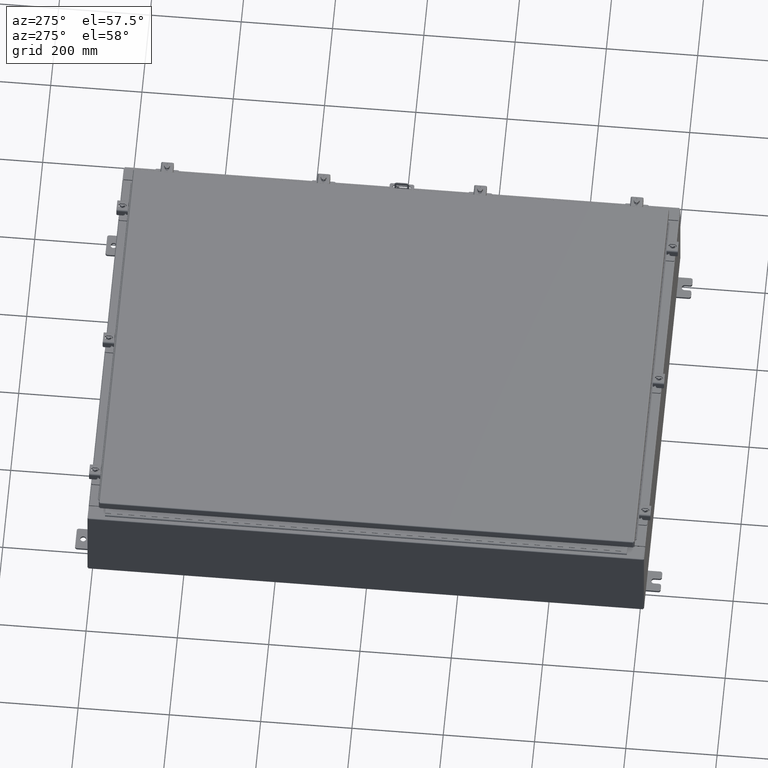
[diagram: clean part render]
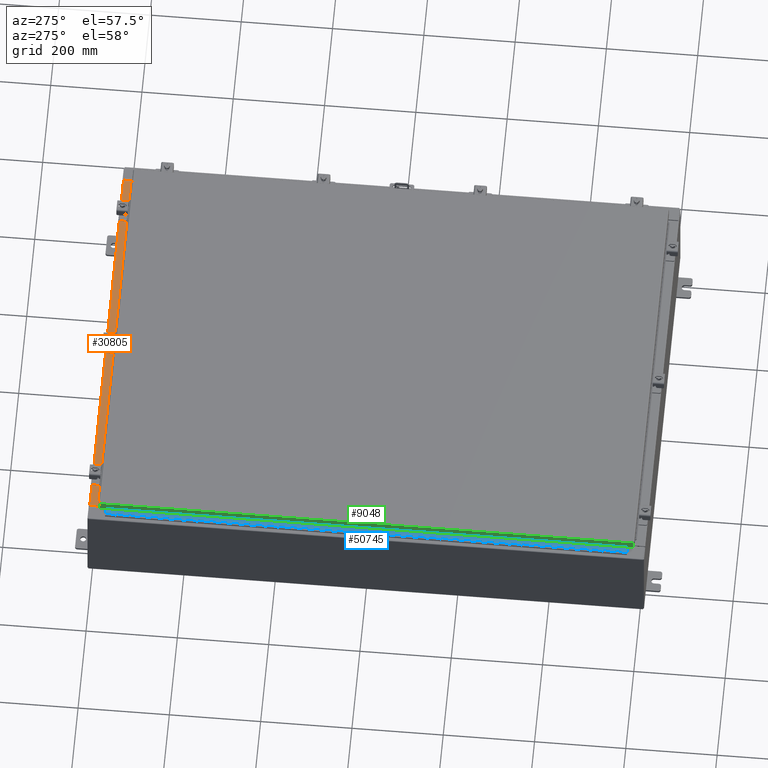
[diagram: same view with three faces highlighted in distinct colors, each labeled with its STEP entity id]
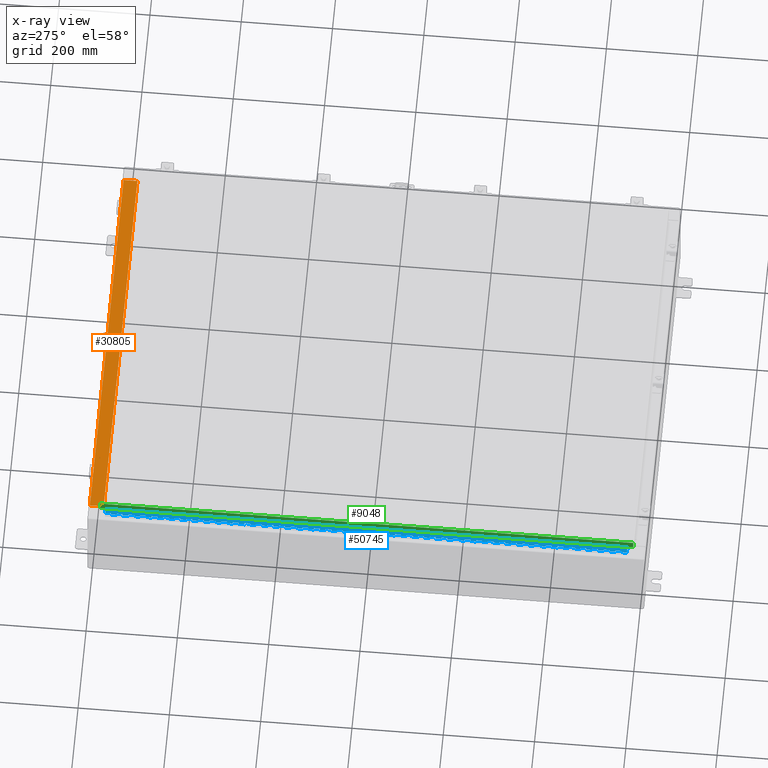
[diagram: x-ray of the same camera — body ghosted, the three highlighted faces saturated]
A machine part, auxiliary view with three faces highlighted in distinct colors.
The next image is the same camera in x-ray (body ghosted, the three faces saturated) — at least one of them is partly hidden behind the body in this view.
Their STEP definitions:

[orange] entity #30805 — the highlighted planar face has unit normal (0, 0, 1).
#2077 = LINE ( 'NONE', #41718, #34773 ) ;
#3322 = CARTESIAN_POINT ( 'NONE',  ( 16.63720000000000700, -1.287299999999999200, 4.000000000000004400 ) ) ;
#3943 = DIRECTION ( 'NONE',  ( 0.0000000000000000000, 3.566381192773190000E-015, 1.000000000000000000 ) ) ;
#4145 = CARTESIAN_POINT ( 'NONE',  ( -16.63719999999999600, -1.287299999999999200, 4.000000000000005300 ) ) ;
#4656 = CARTESIAN_POINT ( 'NONE',  ( 16.63720000000000700, -0.08770000000000026400, 4.000000000000000900 ) ) ;
#4945 = VERTEX_POINT ( 'NONE', #20682 ) ;
#5543 = VECTOR ( 'NONE', #20513, 39.37007874015748100 ) ;
#8042 = CARTESIAN_POINT ( 'NONE',  ( 0.0000000000000000000, 1.311287036958846300E-014, 4.000000000000000900 ) ) ;
#9094 = CARTESIAN_POINT ( 'NONE',  ( -16.63719999999999600, -0.08770000000000026400, 4.000000000000000900 ) ) ;
#9175 = ORIENTED_EDGE ( 'NONE', *, *, #18640, .T. ) ;
#9412 = CARTESIAN_POINT ( 'NONE',  ( 16.63720000000000400, -1.300300000000001300, 4.000000000000005300 ) ) ;
#10053 = ORIENTED_EDGE ( 'NONE', *, *, #35809, .F. ) ;
#11343 = DIRECTION ( 'NONE',  ( -1.000000000000000000, 3.284023746380717400E-017, -1.171208052571274300E-031 ) ) ;
#15643 = VERTEX_POINT ( 'NONE', #9094 ) ;
#16166 = DIRECTION ( 'NONE',  ( -0.0000000000000000000, 1.000000000000000000, -3.566381192773190000E-015 ) ) ;
#16881 = LINE ( 'NONE', #3322, #5543 ) ;
#18640 = EDGE_CURVE ( 'NONE', #24617, #15643, #33428, .T. ) ;
#20513 = DIRECTION ( 'NONE',  ( -1.000000000000000000, 0.0000000000000000000, 0.0000000000000000000 ) ) ;
#20682 = CARTESIAN_POINT ( 'NONE',  ( 16.63720000000000400, -1.287299999999999200, 4.000000000000005300 ) ) ;
#20955 = PLANE ( 'NONE',  #41046 ) ;
#22099 = VECTOR ( 'NONE', #11343, 39.37007874015748100 ) ;
#24617 = VERTEX_POINT ( 'NONE', #4656 ) ;
#25343 = EDGE_CURVE ( 'NONE', #24617, #4945, #34209, .T. ) ;
#28015 = VERTEX_POINT ( 'NONE', #4145 ) ;
#29184 = ORIENTED_EDGE ( 'NONE', *, *, #50916, .F. ) ;
#30478 = ORIENTED_EDGE ( 'NONE', *, *, #25343, .F. ) ;
#30805 = ADVANCED_FACE ( 'NONE', ( #50173 ), #20955, .T. ) ;
#33428 = LINE ( 'NONE', #36730, #22099 ) ;
#33785 = DIRECTION ( 'NONE',  ( 0.0000000000000000000, -1.000000000000000000, 3.566381192773190000E-015 ) ) ;
#34209 = LINE ( 'NONE', #9412, #51622 ) ;
#34773 = VECTOR ( 'NONE', #16166, 39.37007874015748100 ) ;
#35162 = DIRECTION ( 'NONE',  ( -0.0000000000000000000, -1.000000000000000000, 3.566381192773190000E-015 ) ) ;
#35809 = EDGE_CURVE ( 'NONE', #4945, #28015, #16881, .T. ) ;
#36730 = CARTESIAN_POINT ( 'NONE',  ( -2.880088610698934900E-018, -0.08770000000000026400, 4.000000000000000900 ) ) ;
#41046 = AXIS2_PLACEMENT_3D ( 'NONE', #8042, #3943, #33785 ) ;
#41718 = CARTESIAN_POINT ( 'NONE',  ( -16.63719999999999600, -0.07469999999999797600, 4.000000000000000900 ) ) ;
#46373 = EDGE_LOOP ( 'NONE', ( #29184, #10053, #30478, #9175 ) ) ;
#50173 = FACE_OUTER_BOUND ( 'NONE', #46373, .T. ) ;
#50916 = EDGE_CURVE ( 'NONE', #28015, #15643, #2077, .T. ) ;
#51622 = VECTOR ( 'NONE', #35162, 39.37007874015748100 ) ;

[blue] entity #50745 — the highlighted planar face has unit normal (-0, -0, 1).
#8 = CARTESIAN_POINT ( 'NONE',  ( -0.6869999999999965000, 0.8005000000000001000, -38.50000000000000000 ) ) ;
#55 = LINE ( 'NONE', #20211, #21459 ) ;
#144 = VERTEX_POINT ( 'NONE', #29904 ) ;
#156 = LINE ( 'NONE', #12442, #20222 ) ;
#160 = ORIENTED_EDGE ( 'NONE', *, *, #629, .F. ) ;
#194 = ORIENTED_EDGE ( 'NONE', *, *, #39283, .F. ) ;
#201 = EDGE_CURVE ( 'NONE', #29774, #27181, #23965, .T. ) ;
#241 = CARTESIAN_POINT ( 'NONE',  ( -0.6869999999999976100, 0.6755000000000007700, -39.00000000000000000 ) ) ;
#306 = ORIENTED_EDGE ( 'NONE', *, *, #27915, .F. ) ;
#361 = DIRECTION ( 'NONE',  ( 3.389037039080711700E-015, 1.000000000000000000, 3.372179026296522700E-029 ) ) ;
#380 = DIRECTION ( 'NONE',  ( -3.389037039080711700E-015, -1.000000000000000000, -3.372179026296522700E-029 ) ) ;
#388 = LINE ( 'NONE', #24551, #33106 ) ;
#390 = EDGE_CURVE ( 'NONE', #42524, #13721, #38606, .T. ) ;
#513 = CARTESIAN_POINT ( 'NONE',  ( -0.6869999999999976100, 0.5505000000000011000, -0.4999999999999799000 ) ) ;
#572 = CARTESIAN_POINT ( 'NONE',  ( -0.6869999999999987200, 0.5504999999999989900, -4.500000000000002700 ) ) ;
#614 = VECTOR ( 'NONE', #30954, 39.37007874015748100 ) ;
#629 = EDGE_CURVE ( 'NONE', #37531, #12159, #13861, .T. ) ;
#768 = DIRECTION ( 'NONE',  ( -1.217557503402056800E-027, 3.546499815880372200E-029, 1.000000000000000000 ) ) ;
#826 = DIRECTION ( 'NONE',  ( 1.217557503402056800E-027, -3.546499815880372200E-029, -1.000000000000000000 ) ) ;
#833 = EDGE_CURVE ( 'NONE', #23990, #17366, #48597, .T. ) ;
#883 = CARTESIAN_POINT ( 'NONE',  ( -0.6869999999999976100, 0.6755000000000095400, -44.99999999999999300 ) ) ;
#971 = VERTEX_POINT ( 'NONE', #46067 ) ;
#1035 = VERTEX_POINT ( 'NONE', #50740 ) ;
#1055 = VECTOR ( 'NONE', #35278, 39.37007874015748100 ) ;
#1068 = CARTESIAN_POINT ( 'NONE',  ( -0.6869999999999976100, 0.6755000000000095400, -44.99999999999999300 ) ) ;
#1069 = VECTOR ( 'NONE', #7033, 39.37007874015748100 ) ;
#1088 = CARTESIAN_POINT ( 'NONE',  ( -0.6869999999999987200, 0.8005000000000023200, -20.00000000000000000 ) ) ;
#1108 = EDGE_CURVE ( 'NONE', #43561, #45048, #35175, .T. ) ;
#1178 = ORIENTED_EDGE ( 'NONE', *, *, #26071, .F. ) ;
#1227 = VECTOR ( 'NONE', #826, 39.37007874015748100 ) ;
#1335 = EDGE_CURVE ( 'NONE', #37894, #23494, #13124, .T. ) ;
#1339 = LINE ( 'NONE', #23877, #34045 ) ;
#1596 = DIRECTION ( 'NONE',  ( 3.389037039080711700E-015, 1.000000000000000000, 3.372179026296522700E-029 ) ) ;
#1663 = VECTOR ( 'NONE', #54123, 39.37007874015748100 ) ;
#1714 = ORIENTED_EDGE ( 'NONE', *, *, #4158, .F. ) ;
#1735 = ORIENTED_EDGE ( 'NONE', *, *, #20005, .F. ) ;
#1741 = LINE ( 'NONE', #3172, #35794 ) ;
#1748 = EDGE_CURVE ( 'NONE', #18808, #54723, #38465, .T. ) ;
#1761 = VECTOR ( 'NONE', #16339, 39.37007874015748100 ) ;
#1769 = VECTOR ( 'NONE', #14962, 39.37007874015748100 ) ;
#1773 = VECTOR ( 'NONE', #16334, 39.37007874015748100 ) ;
#1893 = LINE ( 'NONE', #31183, #23269 ) ;
#1938 = LINE ( 'NONE', #46590, #11955 ) ;
#1979 = EDGE_LOOP ( 'NONE', ( #18781, #49452, #1735, #37870, #32395, #13353, #10903, #54772, #33823, #52393, #48742, #46854, #27642, #34078, #9300, #41059, #20515, #16333, #28693, #39667, #38652, #17753, #47665, #31330, #19424, #194, #52135, #14589, #35025, #27899, #11612, #12615, #12273, #22615, #29828, #44236, #3913, #47457, #26873, #3328, #54021, #18990, #10445, #39597, #3894, #28942, #26572, #12418, #41806, #52001, #8653, #29486, #18618, #47381, #31633, #47195, #43550, #34001, #160, #30541, #40394, #1714, #35275, #2606, #10730, #23948, #8579, #15545, #19764, #3483, #39305, #5584, #45882, #33036, #28407, #7893, #49328, #24730, #26560, #1178, #43524, #15001, #40871, #21945, #33578, #29801, #25667, #43671, #10491, #9190, #30026, #20545, #20449, #16984, #40324, #23517, #48609, #16181, #42418, #52365, #49043, #27190, #45907, #33971, #23139, #28413, #22321, #306, #26145, #31197, #11459, #14989, #10853, #21618, #19798, #5788, #27964, #18411, #55093, #38937, #51067, #20113, #25154, #26794, #41662, #17494, #26896, #22420, #13298, #19133, #2367, #28999, #10181, #20954, #48127, #30454, #54830, #35619, #54236, #54361, #14994, #28648, #33103, #17544, #21621, #48231, #48956, #9310, #13041, #3344, #40889, #49643, #51888, #6299, #43921, #7037, #10160, #36899, #40776, #8819, #3287, #41004, #17293, #33531, #29530, #34409, #22072, #25208, #55095, #15449, #32183, #46145, #24891, #22810, #19200, #43956, #37488, #9433, #25720, #38692, #41243, #47706 ) ) ;
#1993 = VECTOR ( 'NONE', #19171, 39.37007874015748100 ) ;
#2057 = CARTESIAN_POINT ( 'NONE',  ( -0.6869999999999976100, 0.8005000000000001000, -44.00000000000000000 ) ) ;
#2101 = VECTOR ( 'NONE', #38003, 39.37007874015748100 ) ;
#2111 = VECTOR ( 'NONE', #7510, 39.37007874015748100 ) ;
#2128 = CARTESIAN_POINT ( 'NONE',  ( -0.6869999999999987200, 0.6755000000000007700, -28.99999999999999600 ) ) ;
#2163 = LINE ( 'NONE', #35527, #24859 ) ;
#2290 = CARTESIAN_POINT ( 'NONE',  ( -0.6869999999999976100, 0.8005000000000001000, -36.00000000000000700 ) ) ;
#2306 = DIRECTION ( 'NONE',  ( 3.389037039080711700E-015, 1.000000000000000000, 3.372179026296522700E-029 ) ) ;
#2320 = LINE ( 'NONE', #41611, #46401 ) ;
#2367 = ORIENTED_EDGE ( 'NONE', *, *, #5384, .F. ) ;
#2548 = EDGE_CURVE ( 'NONE', #10420, #23702, #11786, .T. ) ;
#2560 = EDGE_CURVE ( 'NONE', #15290, #15733, #47222, .T. ) ;
#2569 = CARTESIAN_POINT ( 'NONE',  ( -0.6869999999999976100, 0.5505000000000098700, -6.499999999999999100 ) ) ;
#2606 = ORIENTED_EDGE ( 'NONE', *, *, #22561, .F. ) ;
#2701 = VECTOR ( 'NONE', #46821, 39.37007874015748100 ) ;
#2741 = LINE ( 'NONE', #7868, #24118 ) ;
#2801 = VECTOR ( 'NONE', #45358, 39.37007874015748100 ) ;
#2814 = CARTESIAN_POINT ( 'NONE',  ( -0.6869999999999965000, 0.8005000000000001000, -18.99999999999998900 ) ) ;
#2823 = VERTEX_POINT ( 'NONE', #35494 ) ;
#2866 = VERTEX_POINT ( 'NONE', #6035 ) ;
#2895 = VECTOR ( 'NONE', #31055, 39.37007874015748100 ) ;
#3013 = DIRECTION ( 'NONE',  ( 3.389037039080711700E-015, 1.000000000000000000, 3.372179026296522700E-029 ) ) ;
#3028 = VECTOR ( 'NONE', #41843, 39.37007874015748100 ) ;
#3049 = CARTESIAN_POINT ( 'NONE',  ( -0.6869999999999976100, 0.8005000000000001000, -14.49999999999999800 ) ) ;
#3074 = DIRECTION ( 'NONE',  ( -1.217557503402056800E-027, 3.546499815880372200E-029, 1.000000000000000000 ) ) ;
#3156 = CARTESIAN_POINT ( 'NONE',  ( -0.6869999999999987200, 0.6755000000000007700, -41.00000000000000700 ) ) ;
#3161 = DIRECTION ( 'NONE',  ( -1.217557503402056800E-027, 3.546499815880372200E-029, 1.000000000000000000 ) ) ;
#3172 = CARTESIAN_POINT ( 'NONE',  ( -0.6869999999999976100, 0.8005000000000001000, -33.50000000000000000 ) ) ;
#3265 = VECTOR ( 'NONE', #8882, 39.37007874015748100 ) ;
#3266 = VERTEX_POINT ( 'NONE', #47258 ) ;
#3269 = EDGE_CURVE ( 'NONE', #41380, #35181, #13701, .T. ) ;
#3287 = ORIENTED_EDGE ( 'NONE', *, *, #6064, .T. ) ;
#3328 = ORIENTED_EDGE ( 'NONE', *, *, #31085, .F. ) ;
#3329 = LINE ( 'NONE', #2057, #11989 ) ;
#3344 = ORIENTED_EDGE ( 'NONE', *, *, #24939, .F. ) ;
#3483 = ORIENTED_EDGE ( 'NONE', *, *, #11103, .F. ) ;
#3579 = DIRECTION ( 'NONE',  ( 1.217557503402056800E-027, -3.546499815880372200E-029, -1.000000000000000000 ) ) ;
#3591 = DIRECTION ( 'NONE',  ( 3.389037039080711700E-015, 1.000000000000000000, 3.372179026296522700E-029 ) ) ;
#3618 = DIRECTION ( 'NONE',  ( 1.217557503402056800E-027, -3.546499815880372200E-029, -1.000000000000000000 ) ) ;
#3641 = EDGE_CURVE ( 'NONE', #12001, #33842, #50443, .T. ) ;
#3643 = VECTOR ( 'NONE', #8230, 39.37007874015748100 ) ;
#3700 = EDGE_CURVE ( 'NONE', #19095, #38081, #2320, .T. ) ;
#3712 = EDGE_CURVE ( 'NONE', #27812, #5721, #45056, .T. ) ;
#3745 = DIRECTION ( 'NONE',  ( 1.217557503402056800E-027, -3.546499815880372200E-029, -1.000000000000000000 ) ) ;
#3746 = CARTESIAN_POINT ( 'NONE',  ( -0.6869999999999987200, 0.5505000000000011000, -12.99999999999999800 ) ) ;
#3774 = VERTEX_POINT ( 'NONE', #3746 ) ;
#3804 = VECTOR ( 'NONE', #1596, 39.37007874015748100 ) ;
#3814 = VERTEX_POINT ( 'NONE', #12507 ) ;
#3829 = CARTESIAN_POINT ( 'NONE',  ( -0.6869999999999976100, 0.8005000000000001000, -7.500000000000002700 ) ) ;
#3844 = VECTOR ( 'NONE', #20960, 39.37007874015748100 ) ;
#3894 = ORIENTED_EDGE ( 'NONE', *, *, #40459, .T. ) ;
#3913 = ORIENTED_EDGE ( 'NONE', *, *, #11386, .T. ) ;
#3935 = CARTESIAN_POINT ( 'NONE',  ( -0.6869999999999987200, 0.5505000000000011000, -10.50000000000000000 ) ) ;
#3966 = CARTESIAN_POINT ( 'NONE',  ( -0.6869999999999987200, 0.6755000000000007700, -41.49999999999999300 ) ) ;
#3985 = CARTESIAN_POINT ( 'NONE',  ( -0.6869999999999976100, 0.6755000000000095400, -26.00000000000000000 ) ) ;
#3993 = EDGE_CURVE ( 'NONE', #27181, #19981, #21674, .T. ) ;
#4001 = VERTEX_POINT ( 'NONE', #31148 ) ;
#4019 = VECTOR ( 'NONE', #51111, 39.37007874015748100 ) ;
#4045 = LINE ( 'NONE', #6522, #12703 ) ;
#4158 = EDGE_CURVE ( 'NONE', #31753, #44567, #49044, .T. ) ;
#4195 = CARTESIAN_POINT ( 'NONE',  ( -0.6869999999999987200, 0.5505000000000098700, -44.99999999999999300 ) ) ;
#4271 = CARTESIAN_POINT ( 'NONE',  ( -0.6869999999999987200, 0.5505000000000098700, -37.50000000000000000 ) ) ;
#4296 = CARTESIAN_POINT ( 'NONE',  ( -0.6869999999999987200, 0.5505000000000011000, -29.49999999999997900 ) ) ;
#4369 = VERTEX_POINT ( 'NONE', #25538 ) ;
#4790 = VECTOR ( 'NONE', #31598, 39.37007874015748100 ) ;
#4854 = EDGE_CURVE ( 'NONE', #9017, #45591, #18199, .T. ) ;
#4879 = VECTOR ( 'NONE', #17424, 39.37007874015748100 ) ;
#5011 = EDGE_CURVE ( 'NONE', #54239, #11746, #156, .T. ) ;
#5025 = CARTESIAN_POINT ( 'NONE',  ( -0.6869999999999998300, 0.5505000000000011000, -2.499999999999995600 ) ) ;
#5051 = VERTEX_POINT ( 'NONE', #46793 ) ;
#5143 = CARTESIAN_POINT ( 'NONE',  ( -0.6869999999999976100, 0.6755000000000095400, -10.50000000000000000 ) ) ;
#5190 = LINE ( 'NONE', #46513, #3844 ) ;
#5270 = EDGE_CURVE ( 'NONE', #3814, #53084, #8141, .T. ) ;
#5334 = VECTOR ( 'NONE', #3013, 39.37007874015748100 ) ;
#5384 = EDGE_CURVE ( 'NONE', #23219, #3774, #46307, .T. ) ;
#5385 = EDGE_CURVE ( 'NONE', #54068, #51371, #24920, .T. ) ;
#5421 = VECTOR ( 'NONE', #21507, 39.37007874015748100 ) ;
#5436 = CARTESIAN_POINT ( 'NONE',  ( -0.6869999999999976100, 0.8005000000000001000, -26.50000000000000400 ) ) ;
#5479 = CARTESIAN_POINT ( 'NONE',  ( -0.6869999999999987200, 0.8005000000000109800, -6.499999999999999100 ) ) ;
#5522 = VECTOR ( 'NONE', #45502, 39.37007874015748100 ) ;
#5584 = ORIENTED_EDGE ( 'NONE', *, *, #2560, .F. ) ;
#5618 = DIRECTION ( 'NONE',  ( 1.217557503402056800E-027, -3.546499815880372200E-029, -1.000000000000000000 ) ) ;
#5637 = VERTEX_POINT ( 'NONE', #8273 ) ;
#5639 = CARTESIAN_POINT ( 'NONE',  ( -0.6869999999999987200, 0.5505000000000011000, -39.49999999999999300 ) ) ;
#5649 = CARTESIAN_POINT ( 'NONE',  ( -0.6869999999999987200, 0.5505000000000098700, -13.50000000000000000 ) ) ;
#5667 = CARTESIAN_POINT ( 'NONE',  ( -0.6869999999999976100, 0.5505000000000011000, -8.000000000000000000 ) ) ;
#5711 = LINE ( 'NONE', #7354, #38412 ) ;
#5721 = VERTEX_POINT ( 'NONE', #47113 ) ;
#5786 = CARTESIAN_POINT ( 'NONE',  ( -0.6869999999999976100, 0.8005000000000109800, -28.50000000000000000 ) ) ;
#5788 = ORIENTED_EDGE ( 'NONE', *, *, #28439, .F. ) ;
#5958 = LINE ( 'NONE', #49980, #14594 ) ;
#5969 = CARTESIAN_POINT ( 'NONE',  ( -0.6869999999999987200, 0.5504999999999989900, -38.50000000000000000 ) ) ;
#5975 = VECTOR ( 'NONE', #37002, 39.37007874015748100 ) ;
#5988 = VERTEX_POINT ( 'NONE', #27841 ) ;
#6035 = CARTESIAN_POINT ( 'NONE',  ( -0.6869999999999976100, 0.6755000000000007700, -31.00000000000000000 ) ) ;
#6046 = VERTEX_POINT ( 'NONE', #49481 ) ;
#6064 = EDGE_CURVE ( 'NONE', #32664, #38081, #14133, .T. ) ;
#6086 = VECTOR ( 'NONE', #6159, 39.37007874015748100 ) ;
#6159 = DIRECTION ( 'NONE',  ( 1.217557503402056800E-027, -3.546499815880372200E-029, -1.000000000000000000 ) ) ;
#6197 = DIRECTION ( 'NONE',  ( -1.217557503402056800E-027, 3.546499815880372200E-029, 1.000000000000000000 ) ) ;
#6211 = LINE ( 'NONE', #47335, #4879 ) ;
#6216 = VECTOR ( 'NONE', #10314, 39.37007874015748100 ) ;
#6298 = CARTESIAN_POINT ( 'NONE',  ( -0.6869999999999976100, 0.6755000000000095400, -29.99999999999999600 ) ) ;
#6299 = ORIENTED_EDGE ( 'NONE', *, *, #40660, .F. ) ;
#6355 = LINE ( 'NONE', #22879, #27735 ) ;
#6382 = VECTOR ( 'NONE', #380, 39.37007874015748100 ) ;
#6401 = CARTESIAN_POINT ( 'NONE',  ( -0.6869999999999976100, 0.6755000000000029900, -37.00000000000000000 ) ) ;
#6419 = DIRECTION ( 'NONE',  ( 1.217557503402056800E-027, -3.546499815880372200E-029, -1.000000000000000000 ) ) ;
#6516 = VERTEX_POINT ( 'NONE', #27098 ) ;
#6522 = CARTESIAN_POINT ( 'NONE',  ( -0.6869999999999976100, 0.8005000000000088700, -35.00000000000000000 ) ) ;
#6625 = CARTESIAN_POINT ( 'NONE',  ( -0.6869999999999976100, 0.5505000000000011000, -34.00000000000000000 ) ) ;
#6651 = VECTOR ( 'NONE', #22364, 39.37007874015748100 ) ;
#6685 = DIRECTION ( 'NONE',  ( -3.389037039080711700E-015, -1.000000000000000000, -3.372179026296522700E-029 ) ) ;
#6719 = VERTEX_POINT ( 'NONE', #7111 ) ;
#6751 = DIRECTION ( 'NONE',  ( 3.389037039080711700E-015, 1.000000000000000000, 3.372179026296522700E-029 ) ) ;
#6761 = CARTESIAN_POINT ( 'NONE',  ( -0.6869999999999987200, 0.5505000000000098700, -17.99999999999999600 ) ) ;
#6849 = VERTEX_POINT ( 'NONE', #50972 ) ;
#6931 = CARTESIAN_POINT ( 'NONE',  ( -0.6869999999999987200, 0.5505000000000011000, -44.00000000000000000 ) ) ;
#7026 = VECTOR ( 'NONE', #19577, 39.37007874015748100 ) ;
#7033 = DIRECTION ( 'NONE',  ( -3.389037039080711700E-015, -1.000000000000000000, -3.372179026296522700E-029 ) ) ;
#7037 = ORIENTED_EDGE ( 'NONE', *, *, #49799, .F. ) ;
#7040 = VERTEX_POINT ( 'NONE', #5025 ) ;
#7111 = CARTESIAN_POINT ( 'NONE',  ( -0.6869999999999987200, 0.6755000000000095400, -8.500000000000000000 ) ) ;
#7203 = EDGE_CURVE ( 'NONE', #13996, #41593, #36042, .T. ) ;
#7251 = LINE ( 'NONE', #53466, #28625 ) ;
#7259 = CARTESIAN_POINT ( 'NONE',  ( -0.6870000000000019400, -0.6245000000000002800, -45.00000000000000000 ) ) ;
#7283 = DIRECTION ( 'NONE',  ( -1.217557503402056800E-027, 3.546499815880372200E-029, 1.000000000000000000 ) ) ;
#7310 = CARTESIAN_POINT ( 'NONE',  ( -0.6869999999999976100, 0.5505000000000011000, -19.50000000000000000 ) ) ;
#7321 = DIRECTION ( 'NONE',  ( -3.389037039080711700E-015, -1.000000000000000000, -3.372179026296522700E-029 ) ) ;
#7327 = EDGE_CURVE ( 'NONE', #32664, #12038, #22045, .T. ) ;
#7354 = CARTESIAN_POINT ( 'NONE',  ( -0.6869999999999987200, 0.5505000000000098700, -11.50000000000000000 ) ) ;
#7482 = VECTOR ( 'NONE', #49602, 39.37007874015748100 ) ;
#7510 = DIRECTION ( 'NONE',  ( -3.389037039080711700E-015, -1.000000000000000000, -3.372179026296522700E-029 ) ) ;
#7690 = CARTESIAN_POINT ( 'NONE',  ( -0.6869999999999987200, 0.5505000000000011000, -37.00000000000000000 ) ) ;
#7733 = VERTEX_POINT ( 'NONE', #26410 ) ;
#7774 = VERTEX_POINT ( 'NONE', #9783 ) ;
#7809 = CARTESIAN_POINT ( 'NONE',  ( -0.6869999999999976100, 0.5505000000000098700, -28.49999999999997900 ) ) ;
#7847 = CARTESIAN_POINT ( 'NONE',  ( -0.6869999999999965000, 0.8005000000000109800, -11.50000000000000000 ) ) ;
#7868 = CARTESIAN_POINT ( 'NONE',  ( -0.6869999999999976100, 0.6755000000000095400, -44.99999999999999300 ) ) ;
#7893 = ORIENTED_EDGE ( 'NONE', *, *, #13813, .F. ) ;
#8073 = LINE ( 'NONE', #17143, #18068 ) ;
#8141 = LINE ( 'NONE', #39637, #52258 ) ;
#8149 = LINE ( 'NONE', #5786, #29517 ) ;
#8189 = CARTESIAN_POINT ( 'NONE',  ( -0.6869999999999976100, 0.5505000000000098700, -0.9999999999999816800 ) ) ;
#8213 = CARTESIAN_POINT ( 'NONE',  ( -0.6869999999999987200, 0.5504999999999989900, -31.49999999999997900 ) ) ;
#8230 = DIRECTION ( 'NONE',  ( 1.217557503402056800E-027, -3.546499815880372200E-029, -1.000000000000000000 ) ) ;
#8231 = CARTESIAN_POINT ( 'NONE',  ( -0.6869999999999987200, 0.5504999999999989900, -16.49999999999999600 ) ) ;
#8241 = EDGE_CURVE ( 'NONE', #50713, #4001, #21946, .T. ) ;
#8242 = EDGE_CURVE ( 'NONE', #6719, #4369, #33270, .T. ) ;
#8271 = VERTEX_POINT ( 'NONE', #10087 ) ;
#8273 = CARTESIAN_POINT ( 'NONE',  ( -0.6869999999999976100, 0.6755000000000116500, -43.00000000000000700 ) ) ;
#8337 = EDGE_CURVE ( 'NONE', #35820, #34630, #17885, .T. ) ;
#8340 = VECTOR ( 'NONE', #3745, 39.37007874015748100 ) ;
#8430 = CARTESIAN_POINT ( 'NONE',  ( -0.6869999999999976100, 0.6755000000000007700, -29.50000000000000000 ) ) ;
#8433 = LINE ( 'NONE', #22521, #41109 ) ;
#8568 = CARTESIAN_POINT ( 'NONE',  ( -0.6869999999999976100, 0.8005000000000023200, -22.50000000000000000 ) ) ;
#8579 = ORIENTED_EDGE ( 'NONE', *, *, #40529, .F. ) ;
#8581 = LINE ( 'NONE', #31963, #54034 ) ;
#8644 = VERTEX_POINT ( 'NONE', #8213 ) ;
#8653 = ORIENTED_EDGE ( 'NONE', *, *, #9702, .F. ) ;
#8716 = VECTOR ( 'NONE', #40588, 39.37007874015748100 ) ;
#8819 = ORIENTED_EDGE ( 'NONE', *, *, #7327, .F. ) ;
#8832 = EDGE_CURVE ( 'NONE', #21058, #9117, #25599, .T. ) ;
#8882 = DIRECTION ( 'NONE',  ( 3.389037039080711700E-015, 1.000000000000000000, 3.372179026296522700E-029 ) ) ;
#8907 = VECTOR ( 'NONE', #35404, 39.37007874015748100 ) ;
#8910 = VERTEX_POINT ( 'NONE', #27053 ) ;
#9017 = VERTEX_POINT ( 'NONE', #36349 ) ;
#9117 = VERTEX_POINT ( 'NONE', #17688 ) ;
#9153 = CARTESIAN_POINT ( 'NONE',  ( -0.6869999999999987200, 0.5504999999999989900, -19.00000000000000000 ) ) ;
#9165 = EDGE_CURVE ( 'NONE', #33678, #14322, #53621, .T. ) ;
#9166 = LINE ( 'NONE', #45341, #30547 ) ;
#9190 = ORIENTED_EDGE ( 'NONE', *, *, #3269, .F. ) ;
#9217 = VERTEX_POINT ( 'NONE', #35385 ) ;
#9230 = VERTEX_POINT ( 'NONE', #31308 ) ;
#9268 = CARTESIAN_POINT ( 'NONE',  ( -0.6869999999999987200, 0.5505000000000098700, -8.999999999999998200 ) ) ;
#9282 = EDGE_CURVE ( 'NONE', #40344, #16646, #50953, .T. ) ;
#9300 = ORIENTED_EDGE ( 'NONE', *, *, #16385, .F. ) ;
#9310 = ORIENTED_EDGE ( 'NONE', *, *, #8242, .F. ) ;
#9337 = VERTEX_POINT ( 'NONE', #15032 ) ;
#9360 = VECTOR ( 'NONE', #39904, 39.37007874015748100 ) ;
#9390 = DIRECTION ( 'NONE',  ( 1.217557503402056800E-027, -3.546499815880372200E-029, -1.000000000000000000 ) ) ;
#9400 = EDGE_CURVE ( 'NONE', #39712, #44567, #30177, .T. ) ;
#9411 = EDGE_CURVE ( 'NONE', #45587, #47022, #40170, .T. ) ;
#9433 = ORIENTED_EDGE ( 'NONE', *, *, #18653, .F. ) ;
#9455 = DIRECTION ( 'NONE',  ( -1.217557503402056800E-027, 3.546499815880372200E-029, 1.000000000000000000 ) ) ;
#9459 = CARTESIAN_POINT ( 'NONE',  ( -0.6869999999999976100, 0.8005000000000001000, -3.000000000000001800 ) ) ;
#9470 = CARTESIAN_POINT ( 'NONE',  ( -0.6869999999999987200, 0.5505000000000011000, -17.49999999999999600 ) ) ;
#9504 = DIRECTION ( 'NONE',  ( -1.217557503402056800E-027, 3.546499815880372200E-029, 1.000000000000000000 ) ) ;
#9669 = LINE ( 'NONE', #7847, #42380 ) ;
#9691 = CARTESIAN_POINT ( 'NONE',  ( -0.6869999999999976100, 0.6755000000000095400, -44.99999999999999300 ) ) ;
#9702 = EDGE_CURVE ( 'NONE', #49995, #47365, #6211, .T. ) ;
#9748 = EDGE_CURVE ( 'NONE', #8910, #41380, #36238, .T. ) ;
#9766 = VERTEX_POINT ( 'NONE', #5143 ) ;
#9783 = CARTESIAN_POINT ( 'NONE',  ( -0.6869999999999976100, 0.6755000000000007700, -44.00000000000000000 ) ) ;
#9841 = LINE ( 'NONE', #24360, #29881 ) ;
#9870 = CARTESIAN_POINT ( 'NONE',  ( -0.6869999999999976100, 0.6755000000000095400, -6.000000000000001800 ) ) ;
#9925 = CARTESIAN_POINT ( 'NONE',  ( -0.6869999999999987200, 0.5505000000000011000, -5.499999999999997300 ) ) ;
#10043 = DIRECTION ( 'NONE',  ( -3.389037039080711700E-015, -1.000000000000000000, -3.372179026296522700E-029 ) ) ;
#10055 = LINE ( 'NONE', #42376, #54191 ) ;
#10087 = CARTESIAN_POINT ( 'NONE',  ( -0.6869999999999987200, 0.5504999999999989900, -23.99999999999997500 ) ) ;
#10113 = LINE ( 'NONE', #28353, #24178 ) ;
#10160 = ORIENTED_EDGE ( 'NONE', *, *, #9165, .T. ) ;
#10181 = ORIENTED_EDGE ( 'NONE', *, *, #9411, .T. ) ;
#10231 = VECTOR ( 'NONE', #48148, 39.37007874015748100 ) ;
#10257 = CARTESIAN_POINT ( 'NONE',  ( -0.6869999999999987200, 0.5505000000000011000, -10.50000000000000000 ) ) ;
#10261 = CARTESIAN_POINT ( 'NONE',  ( -0.6869999999999976100, 0.6755000000000095400, -44.99999999999999300 ) ) ;
#10270 = VECTOR ( 'NONE', #35227, 39.37007874015748100 ) ;
#10314 = DIRECTION ( 'NONE',  ( -1.217557503402056800E-027, 3.546499815880372200E-029, 1.000000000000000000 ) ) ;
#10316 = VECTOR ( 'NONE', #32419, 39.37007874015748100 ) ;
#10320 = VECTOR ( 'NONE', #37266, 39.37007874015748100 ) ;
#10332 = CARTESIAN_POINT ( 'NONE',  ( -0.6869999999999987200, 0.5505000000000011000, -29.49999999999997900 ) ) ;
#10414 = EDGE_CURVE ( 'NONE', #26833, #13721, #15436, .T. ) ;
#10420 = VERTEX_POINT ( 'NONE', #27667 ) ;
#10445 = ORIENTED_EDGE ( 'NONE', *, *, #27703, .F. ) ;
#10489 = LINE ( 'NONE', #15443, #19195 ) ;
#10491 = ORIENTED_EDGE ( 'NONE', *, *, #52417, .T. ) ;
#10554 = CARTESIAN_POINT ( 'NONE',  ( -0.6869999999999987200, 0.6755000000000095400, -0.9999999999999992200 ) ) ;
#10705 = CARTESIAN_POINT ( 'NONE',  ( -0.6869999999999976100, 0.8005000000000001000, -4.500000000000002700 ) ) ;
#10730 = ORIENTED_EDGE ( 'NONE', *, *, #5385, .T. ) ;
#10749 = CARTESIAN_POINT ( 'NONE',  ( -0.6869999999999976100, 0.8005000000000109800, -28.00000000000000000 ) ) ;
#10754 = DIRECTION ( 'NONE',  ( 3.369016658928386400E-015, 1.000000000000000000, 3.530281972151349400E-029 ) ) ;
#10759 = EDGE_CURVE ( 'NONE', #39538, #31753, #19432, .T. ) ;
#10774 = EDGE_CURVE ( 'NONE', #39786, #8910, #32108, .T. ) ;
#10784 = EDGE_CURVE ( 'NONE', #27941, #9117, #8073, .T. ) ;
#10838 = DIRECTION ( 'NONE',  ( 3.389037039080711700E-015, 1.000000000000000000, 3.372179026296522700E-029 ) ) ;
#10853 = ORIENTED_EDGE ( 'NONE', *, *, #390, .T. ) ;
#10903 = ORIENTED_EDGE ( 'NONE', *, *, #46380, .F. ) ;
#10911 = CARTESIAN_POINT ( 'NONE',  ( -0.6869999999999976100, 0.5505000000000098700, -8.500000000000000000 ) ) ;
#11022 = CARTESIAN_POINT ( 'NONE',  ( -0.6869999999999976100, 0.6755000000000095400, -23.00000000000000000 ) ) ;
#11054 = CARTESIAN_POINT ( 'NONE',  ( -0.6869999999999987200, 0.5505000000000098700, -32.50000000000000000 ) ) ;
#11058 = CARTESIAN_POINT ( 'NONE',  ( -0.6869999999999987200, 0.5505000000000098700, -25.49999999999998200 ) ) ;
#11082 = VECTOR ( 'NONE', #53728, 39.37007874015748100 ) ;
#11093 = EDGE_CURVE ( 'NONE', #21159, #19095, #52836, .T. ) ;
#11103 = EDGE_CURVE ( 'NONE', #33803, #51202, #17372, .T. ) ;
#11105 = LINE ( 'NONE', #7259, #55233 ) ;
#11119 = CARTESIAN_POINT ( 'NONE',  ( -0.6869999999999976100, 0.8005000000000001000, -31.50000000000000400 ) ) ;
#11168 = DIRECTION ( 'NONE',  ( -1.217557503402056800E-027, 3.546499815880372200E-029, 1.000000000000000000 ) ) ;
#11202 = CARTESIAN_POINT ( 'NONE',  ( -0.6869999999999976100, 0.6755000000000095400, -44.99999999999999300 ) ) ;
#11302 = CARTESIAN_POINT ( 'NONE',  ( -0.6869999999999976100, 0.5505000000000098700, -20.99999999999997900 ) ) ;
#11362 = CARTESIAN_POINT ( 'NONE',  ( -0.6869999999999976100, 0.6755000000000007700, -10.00000000000000000 ) ) ;
#11386 = EDGE_CURVE ( 'NONE', #48694, #6849, #49446, .T. ) ;
#11457 = LINE ( 'NONE', #37746, #21511 ) ;
#11459 = ORIENTED_EDGE ( 'NONE', *, *, #38814, .F. ) ;
#11589 = CARTESIAN_POINT ( 'NONE',  ( -0.6869999999999976100, 0.6755000000000095400, -44.99999999999999300 ) ) ;
#11612 = ORIENTED_EDGE ( 'NONE', *, *, #26262, .F. ) ;
#11643 = DIRECTION ( 'NONE',  ( 1.217557503402056800E-027, -3.546499815880372200E-029, -1.000000000000000000 ) ) ;
#11705 = EDGE_CURVE ( 'NONE', #3774, #34955, #43332, .T. ) ;
#11746 = VERTEX_POINT ( 'NONE', #19116 ) ;
#11768 = DIRECTION ( 'NONE',  ( 3.389037039080711700E-015, 1.000000000000000000, 3.372179026296522700E-029 ) ) ;
#11781 = LINE ( 'NONE', #15327, #34474 ) ;
#11786 = LINE ( 'NONE', #3829, #1773 ) ;
#11849 = LINE ( 'NONE', #37893, #33212 ) ;
#11914 = CARTESIAN_POINT ( 'NONE',  ( -0.6869999999999976100, 0.8005000000000001000, -14.99999999999999600 ) ) ;
#11928 = LINE ( 'NONE', #27484, #44647 ) ;
#11955 = VECTOR ( 'NONE', #12599, 39.37007874015748100 ) ;
#11968 = VERTEX_POINT ( 'NONE', #39226 ) ;
#11989 = VECTOR ( 'NONE', #53240, 39.37007874015748100 ) ;
#11990 = CARTESIAN_POINT ( 'NONE',  ( -0.6869999999999976100, 0.6755000000000007700, -0.4999999999999973900 ) ) ;
#12001 = VERTEX_POINT ( 'NONE', #18124 ) ;
#12020 = DIRECTION ( 'NONE',  ( 1.217557503402056800E-027, -3.546499815880372200E-029, -1.000000000000000000 ) ) ;
#12038 = VERTEX_POINT ( 'NONE', #9925 ) ;
#12096 = EDGE_CURVE ( 'NONE', #9766, #48984, #11928, .T. ) ;
#12159 = VERTEX_POINT ( 'NONE', #32118 ) ;
#12163 = LINE ( 'NONE', #9691, #44884 ) ;
#12166 = EDGE_CURVE ( 'NONE', #30824, #6849, #30634, .T. ) ;
#12221 = VECTOR ( 'NONE', #24788, 39.37007874015748100 ) ;
#12273 = ORIENTED_EDGE ( 'NONE', *, *, #14463, .T. ) ;
#12299 = EDGE_CURVE ( 'NONE', #12159, #2866, #39282, .T. ) ;
#12330 = DIRECTION ( 'NONE',  ( 3.389037039080711700E-015, 1.000000000000000000, 3.372179026296522700E-029 ) ) ;
#12353 = EDGE_CURVE ( 'NONE', #15921, #14322, #22603, .T. ) ;
#12418 = ORIENTED_EDGE ( 'NONE', *, *, #21557, .F. ) ;
#12442 = CARTESIAN_POINT ( 'NONE',  ( -0.6869999999999998300, 0.5505000000000098700, -42.50000000000000000 ) ) ;
#12451 = VERTEX_POINT ( 'NONE', #17158 ) ;
#12507 = CARTESIAN_POINT ( 'NONE',  ( -0.6869999999999987200, 0.6755000000000007700, -21.50000000000000400 ) ) ;
#12561 = VECTOR ( 'NONE', #12020, 39.37007874015748100 ) ;
#12593 = VECTOR ( 'NONE', #38829, 39.37007874015748100 ) ;
#12599 = DIRECTION ( 'NONE',  ( -3.389037039080711700E-015, -1.000000000000000000, -3.372179026296522700E-029 ) ) ;
#12615 = ORIENTED_EDGE ( 'NONE', *, *, #42852, .F. ) ;
#12703 = VECTOR ( 'NONE', #53389, 39.37007874015748100 ) ;
#12714 = VECTOR ( 'NONE', #29399, 39.37007874015748100 ) ;
#12747 = VERTEX_POINT ( 'NONE', #19017 ) ;
#12860 = VERTEX_POINT ( 'NONE', #24045 ) ;
#12885 = VECTOR ( 'NONE', #47967, 39.37007874015748100 ) ;
#12996 = CARTESIAN_POINT ( 'NONE',  ( -0.6869999999999965000, 0.8005000000000001000, -39.00000000000000000 ) ) ;
#13034 = VERTEX_POINT ( 'NONE', #42475 ) ;
#13041 = ORIENTED_EDGE ( 'NONE', *, *, #28478, .T. ) ;
#13079 = DIRECTION ( 'NONE',  ( 1.217557503402056800E-027, -3.546499815880372200E-029, -1.000000000000000000 ) ) ;
#13086 = EDGE_CURVE ( 'NONE', #144, #45711, #24534, .T. ) ;
#13124 = LINE ( 'NONE', #35536, #23156 ) ;
#13149 = CARTESIAN_POINT ( 'NONE',  ( -0.6869999999999965000, 0.6755000000000095400, -20.50000000000000400 ) ) ;
#13261 = EDGE_CURVE ( 'NONE', #33802, #5988, #16487, .T. ) ;
#13298 = ORIENTED_EDGE ( 'NONE', *, *, #46446, .T. ) ;
#13342 = EDGE_CURVE ( 'NONE', #13034, #21159, #22503, .T. ) ;
#13353 = ORIENTED_EDGE ( 'NONE', *, *, #51963, .F. ) ;
#13358 = LINE ( 'NONE', #31751, #34702 ) ;
#13376 = VERTEX_POINT ( 'NONE', #32175 ) ;
#13400 = LINE ( 'NONE', #18297, #46151 ) ;
#13493 = CARTESIAN_POINT ( 'NONE',  ( -0.6869999999999987200, 0.5505000000000011000, -39.00000000000000000 ) ) ;
#13494 = VERTEX_POINT ( 'NONE', #28821 ) ;
#13539 = VERTEX_POINT ( 'NONE', #50313 ) ;
#13553 = VERTEX_POINT ( 'NONE', #41850 ) ;
#13701 = LINE ( 'NONE', #17344, #35058 ) ;
#13721 = VERTEX_POINT ( 'NONE', #51599 ) ;
#13765 = EDGE_CURVE ( 'NONE', #13034, #55356, #17759, .T. ) ;
#13798 = CARTESIAN_POINT ( 'NONE',  ( -0.6869999999999987200, 0.6755000000000029900, -34.50000000000000700 ) ) ;
#13813 = EDGE_CURVE ( 'NONE', #31365, #6516, #25124, .T. ) ;
#13815 = CARTESIAN_POINT ( 'NONE',  ( -0.6869999999999987200, 0.5505000000000011000, -17.49999999999999600 ) ) ;
#13861 = LINE ( 'NONE', #41581, #15193 ) ;
#13869 = LINE ( 'NONE', #32329, #45285 ) ;
#13977 = VECTOR ( 'NONE', #50328, 39.37007874015748100 ) ;
#13996 = VERTEX_POINT ( 'NONE', #7690 ) ;
#14081 = VECTOR ( 'NONE', #37971, 39.37007874015748100 ) ;
#14133 = LINE ( 'NONE', #45189, #2801 ) ;
#14168 = VECTOR ( 'NONE', #16587, 39.37007874015748100 ) ;
#14180 = VERTEX_POINT ( 'NONE', #25946 ) ;
#14183 = DIRECTION ( 'NONE',  ( 1.217557503402056800E-027, -3.546499815880372200E-029, -1.000000000000000000 ) ) ;
#14187 = EDGE_CURVE ( 'NONE', #12001, #23008, #17709, .T. ) ;
#14196 = VECTOR ( 'NONE', #29611, 39.37007874015748100 ) ;
#14322 = VERTEX_POINT ( 'NONE', #9870 ) ;
#14410 = VECTOR ( 'NONE', #28116, 39.37007874015748100 ) ;
#14460 = LINE ( 'NONE', #36714, #47238 ) ;
#14463 = EDGE_CURVE ( 'NONE', #54456, #41593, #15677, .T. ) ;
#14506 = VECTOR ( 'NONE', #6685, 39.37007874015748100 ) ;
#14507 = EDGE_CURVE ( 'NONE', #12038, #15921, #34367, .T. ) ;
#14558 = EDGE_CURVE ( 'NONE', #19803, #13553, #33038, .T. ) ;
#14589 = ORIENTED_EDGE ( 'NONE', *, *, #18290, .F. ) ;
#14594 = VECTOR ( 'NONE', #37244, 39.37007874015748100 ) ;
#14630 = CARTESIAN_POINT ( 'NONE',  ( -0.6869999999999987200, 0.5505000000000011000, -31.99999999999997900 ) ) ;
#14667 = CARTESIAN_POINT ( 'NONE',  ( -0.6869999999999987200, 0.6755000000000095400, -42.00000000000000000 ) ) ;
#14720 = LINE ( 'NONE', #9459, #47500 ) ;
#14855 = EDGE_CURVE ( 'NONE', #14180, #47946, #40977, .T. ) ;
#14887 = CARTESIAN_POINT ( 'NONE',  ( -0.6869999999999976100, 0.6755000000000007700, -19.50000000000000000 ) ) ;
#14918 = VECTOR ( 'NONE', #19194, 39.37007874015748100 ) ;
#14961 = LINE ( 'NONE', #3935, #3643 ) ;
#14962 = DIRECTION ( 'NONE',  ( 1.217557503402056800E-027, -3.546499815880372200E-029, -1.000000000000000000 ) ) ;
#14989 = ORIENTED_EDGE ( 'NONE', *, *, #25461, .F. ) ;
#14994 = ORIENTED_EDGE ( 'NONE', *, *, #12096, .T. ) ;
#15001 = ORIENTED_EDGE ( 'NONE', *, *, #14558, .F. ) ;
#15032 = CARTESIAN_POINT ( 'NONE',  ( -0.6869999999999976100, 0.6755000000000007700, -31.50000000000000400 ) ) ;
#15077 = CARTESIAN_POINT ( 'NONE',  ( -0.6869999999999987200, 0.5505000000000011000, -3.000000000000001800 ) ) ;
#15141 = LINE ( 'NONE', #41013, #49241 ) ;
#15193 = VECTOR ( 'NONE', #28747, 39.37007874015748100 ) ;
#15236 = VERTEX_POINT ( 'NONE', #48328 ) ;
#15290 = VERTEX_POINT ( 'NONE', #53007 ) ;
#15327 = CARTESIAN_POINT ( 'NONE',  ( -0.6869999999999976100, 0.6755000000000095400, -44.99999999999999300 ) ) ;
#15368 = LINE ( 'NONE', #25346, #2701 ) ;
#15436 = LINE ( 'NONE', #48938, #26821 ) ;
#15443 = CARTESIAN_POINT ( 'NONE',  ( -0.6869999999999976100, 0.6755000000000095400, -44.99999999999999300 ) ) ;
#15449 = ORIENTED_EDGE ( 'NONE', *, *, #37077, .F. ) ;
#15458 = VECTOR ( 'NONE', #53684, 39.37007874015748100 ) ;
#15541 = VERTEX_POINT ( 'NONE', #4271 ) ;
#15545 = ORIENTED_EDGE ( 'NONE', *, *, #17085, .F. ) ;
#15611 = CARTESIAN_POINT ( 'NONE',  ( -0.6869999999999965000, 0.5505000000000098700, -15.49999999999999800 ) ) ;
#15646 = CARTESIAN_POINT ( 'NONE',  ( -0.6869999999999976100, 0.8005000000000088700, -0.9999999999999992200 ) ) ;
#15677 = LINE ( 'NONE', #45144, #7026 ) ;
#15733 = VERTEX_POINT ( 'NONE', #39661 ) ;
#15756 = CARTESIAN_POINT ( 'NONE',  ( -0.6869999999999987200, 0.5504999999999989900, -43.49999999999999300 ) ) ;
#15786 = EDGE_CURVE ( 'NONE', #26002, #47946, #42996, .T. ) ;
#15830 = VECTOR ( 'NONE', #9504, 39.37007874015748100 ) ;
#15919 = CARTESIAN_POINT ( 'NONE',  ( -0.6869999999999976100, 0.6755000000000095400, -30.50000000000000400 ) ) ;
#15921 = VERTEX_POINT ( 'NONE', #32385 ) ;
#16070 = CARTESIAN_POINT ( 'NONE',  ( -0.6869999999999998300, 0.5505000000000011000, -2.499999999999995600 ) ) ;
#16181 = ORIENTED_EDGE ( 'NONE', *, *, #39877, .F. ) ;
#16214 = DIRECTION ( 'NONE',  ( 1.217557503402056800E-027, -3.546499815880372200E-029, -1.000000000000000000 ) ) ;
#16255 = CARTESIAN_POINT ( 'NONE',  ( -0.6869999999999987200, 0.5505000000000098700, -18.50000000000000000 ) ) ;
#16280 = EDGE_CURVE ( 'NONE', #35071, #47084, #45664, .T. ) ;
#16333 = ORIENTED_EDGE ( 'NONE', *, *, #38467, .F. ) ;
#16334 = DIRECTION ( 'NONE',  ( -3.389037039080711700E-015, -1.000000000000000000, -3.372179026296522700E-029 ) ) ;
#16339 = DIRECTION ( 'NONE',  ( -3.389037039080711700E-015, -1.000000000000000000, -3.372179026296522700E-029 ) ) ;
#16385 = EDGE_CURVE ( 'NONE', #17366, #3266, #48989, .T. ) ;
#16402 = DIRECTION ( 'NONE',  ( -3.389037039080711700E-015, -1.000000000000000000, -3.372179026296522700E-029 ) ) ;
#16441 = VECTOR ( 'NONE', #54749, 39.37007874015748100 ) ;
#16487 = LINE ( 'NONE', #52769, #3804 ) ;
#16587 = DIRECTION ( 'NONE',  ( -1.217557503402056800E-027, 3.546499815880372200E-029, 1.000000000000000000 ) ) ;
#16646 = VERTEX_POINT ( 'NONE', #7310 ) ;
#16706 = DIRECTION ( 'NONE',  ( 1.217557503402056800E-027, -3.546499815880372200E-029, -1.000000000000000000 ) ) ;
#16755 = LINE ( 'NONE', #8, #5421 ) ;
#16984 = ORIENTED_EDGE ( 'NONE', *, *, #42819, .F. ) ;
#17004 = EDGE_CURVE ( 'NONE', #1035, #22354, #12163, .T. ) ;
#17085 = EDGE_CURVE ( 'NONE', #9230, #17900, #8149, .T. ) ;
#17143 = CARTESIAN_POINT ( 'NONE',  ( -0.6869999999999976100, 0.6755000000000095400, -44.99999999999999300 ) ) ;
#17158 = CARTESIAN_POINT ( 'NONE',  ( -0.6869999999999998300, 0.6755000000000095400, -21.00000000000000000 ) ) ;
#17230 = EDGE_CURVE ( 'NONE', #27212, #29689, #10113, .T. ) ;
#17285 = VECTOR ( 'NONE', #32597, 39.37007874015748100 ) ;
#17293 = ORIENTED_EDGE ( 'NONE', *, *, #11093, .F. ) ;
#17332 = LINE ( 'NONE', #50596, #40030 ) ;
#17344 = CARTESIAN_POINT ( 'NONE',  ( -0.6869999999999976100, 0.8005000000000088700, -23.00000000000000000 ) ) ;
#17366 = VERTEX_POINT ( 'NONE', #54849 ) ;
#17372 = LINE ( 'NONE', #10749, #8716 ) ;
#17395 = EDGE_CURVE ( 'NONE', #45865, #25792, #37485, .T. ) ;
#17424 = DIRECTION ( 'NONE',  ( 1.217557503402056800E-027, -3.546499815880372200E-029, -1.000000000000000000 ) ) ;
#17475 = CARTESIAN_POINT ( 'NONE',  ( -0.6869999999999987200, 0.5505000000000033200, -29.99999999999997500 ) ) ;
#17477 = DIRECTION ( 'NONE',  ( 3.389037039080711700E-015, 1.000000000000000000, 3.372179026296522700E-029 ) ) ;
#17494 = ORIENTED_EDGE ( 'NONE', *, *, #24594, .F. ) ;
#17544 = ORIENTED_EDGE ( 'NONE', *, *, #27384, .F. ) ;
#17562 = VECTOR ( 'NONE', #52824, 39.37007874015748100 ) ;
#17591 = DIRECTION ( 'NONE',  ( -1.217557503402056800E-027, 3.546499815880372200E-029, 1.000000000000000000 ) ) ;
#17637 = EDGE_CURVE ( 'NONE', #43561, #19981, #48174, .T. ) ;
#17688 = CARTESIAN_POINT ( 'NONE',  ( -0.6869999999999976100, 0.6755000000000095400, -38.00000000000000000 ) ) ;
#17709 = LINE ( 'NONE', #51550, #6382 ) ;
#17719 = CARTESIAN_POINT ( 'NONE',  ( -0.6869999999999965000, 0.6755000000000007700, -33.50000000000000000 ) ) ;
#17753 = ORIENTED_EDGE ( 'NONE', *, *, #3712, .F. ) ;
#17759 = LINE ( 'NONE', #47668, #36469 ) ;
#17763 = VECTOR ( 'NONE', #50091, 39.37007874015748100 ) ;
#17775 = CARTESIAN_POINT ( 'NONE',  ( -0.6869999999999987200, 0.5505000000000098700, -22.99999999999997500 ) ) ;
#17801 = CARTESIAN_POINT ( 'NONE',  ( -0.6869999999999987200, 0.5505000000000098700, -25.99999999999997900 ) ) ;
#17885 = LINE ( 'NONE', #44611, #50669 ) ;
#17900 = VERTEX_POINT ( 'NONE', #39794 ) ;
#17950 = VECTOR ( 'NONE', #35594, 39.37007874015748100 ) ;
#18013 = DIRECTION ( 'NONE',  ( -3.389037039080711700E-015, -1.000000000000000000, -3.372179026296522700E-029 ) ) ;
#18038 = CARTESIAN_POINT ( 'NONE',  ( -0.6869999999999987200, 0.6755000000000007700, -14.99999999999999600 ) ) ;
#18068 = VECTOR ( 'NONE', #42697, 39.37007874015748100 ) ;
#18098 = VECTOR ( 'NONE', #13079, 39.37007874015748100 ) ;
#18124 = CARTESIAN_POINT ( 'NONE',  ( -0.6869999999999976100, 0.6755000000000095400, -3.499999999999999100 ) ) ;
#18137 = EDGE_CURVE ( 'NONE', #144, #36830, #24815, .T. ) ;
#18199 = LINE ( 'NONE', #36895, #5522 ) ;
#18290 = EDGE_CURVE ( 'NONE', #27941, #45251, #16755, .T. ) ;
#18297 = CARTESIAN_POINT ( 'NONE',  ( -0.6869999999999987200, 0.5504999999999989900, -9.500000000000000000 ) ) ;
#18300 = EDGE_CURVE ( 'NONE', #8644, #33802, #38139, .T. ) ;
#18304 = VECTOR ( 'NONE', #20197, 39.37007874015748100 ) ;
#18358 = CARTESIAN_POINT ( 'NONE',  ( -0.6869999999999976100, 0.6755000000000095400, -11.00000000000000000 ) ) ;
#18376 = LINE ( 'NONE', #54600, #35718 ) ;
#18377 = CARTESIAN_POINT ( 'NONE',  ( -0.6869999999999965000, 0.8005000000000088700, -32.50000000000000700 ) ) ;
#18379 = CARTESIAN_POINT ( 'NONE',  ( -0.6869999999999976100, 0.6755000000000095400, -44.99999999999999300 ) ) ;
#18411 = ORIENTED_EDGE ( 'NONE', *, *, #23431, .F. ) ;
#18461 = VERTEX_POINT ( 'NONE', #13798 ) ;
#18537 = LINE ( 'NONE', #16070, #27245 ) ;
#18545 = EDGE_CURVE ( 'NONE', #16646, #13539, #40102, .T. ) ;
#18576 = VERTEX_POINT ( 'NONE', #15077 ) ;
#18584 = DIRECTION ( 'NONE',  ( 3.389037039080711700E-015, 1.000000000000000000, 3.372179026296522700E-029 ) ) ;
#18613 = CARTESIAN_POINT ( 'NONE',  ( -0.6869999999999987200, 0.5505000000000098700, -23.49999999999997900 ) ) ;
#18618 = ORIENTED_EDGE ( 'NONE', *, *, #33677, .T. ) ;
#18653 = EDGE_CURVE ( 'NONE', #52253, #52576, #44781, .T. ) ;
#18702 = DIRECTION ( 'NONE',  ( -1.217557503402056800E-027, 3.546499815880372200E-029, 1.000000000000000000 ) ) ;
#18748 = DIRECTION ( 'NONE',  ( 1.217557503402056800E-027, -3.546499815880372200E-029, -1.000000000000000000 ) ) ;
#18781 = ORIENTED_EDGE ( 'NONE', *, *, #201, .F. ) ;
#18808 = VERTEX_POINT ( 'NONE', #20893 ) ;
#18884 = EDGE_CURVE ( 'NONE', #9337, #2866, #15368, .T. ) ;
#18923 = CARTESIAN_POINT ( 'NONE',  ( -0.6869999999999976100, 0.6755000000000095400, -44.99999999999999300 ) ) ;
#18946 = CARTESIAN_POINT ( 'NONE',  ( -0.6869999999999976100, 0.5504999999999989900, -21.49999999999997900 ) ) ;
#18990 = ORIENTED_EDGE ( 'NONE', *, *, #31166, .F. ) ;
#19002 = CARTESIAN_POINT ( 'NONE',  ( -0.6869999999999987200, 0.5505000000000098700, -13.50000000000000000 ) ) ;
#19017 = CARTESIAN_POINT ( 'NONE',  ( -0.6869999999999976100, 0.5505000000000098700, -1.499999999999979100 ) ) ;
#19053 = DIRECTION ( 'NONE',  ( -1.217557503402056800E-027, 3.546499815880372200E-029, 1.000000000000000000 ) ) ;
#19095 = VERTEX_POINT ( 'NONE', #52608 ) ;
#19116 = CARTESIAN_POINT ( 'NONE',  ( -0.6869999999999987200, 0.5505000000000098700, -43.00000000000000700 ) ) ;
#19133 = ORIENTED_EDGE ( 'NONE', *, *, #11705, .F. ) ;
#19161 = CARTESIAN_POINT ( 'NONE',  ( -0.6869999999999976100, 0.6755000000000095400, -44.99999999999999300 ) ) ;
#19171 = DIRECTION ( 'NONE',  ( 3.389037039080711700E-015, 1.000000000000000000, 3.372179026296522700E-029 ) ) ;
#19179 = DIRECTION ( 'NONE',  ( 1.217557503402056800E-027, -3.546499815880372200E-029, -1.000000000000000000 ) ) ;
#19194 = DIRECTION ( 'NONE',  ( 3.389037039080711700E-015, 1.000000000000000000, 3.372179026296522700E-029 ) ) ;
#19195 = VECTOR ( 'NONE', #49653, 39.37007874015748100 ) ;
#19200 = ORIENTED_EDGE ( 'NONE', *, *, #20182, .F. ) ;
#19273 = VECTOR ( 'NONE', #10838, 39.37007874015748100 ) ;
#19278 = CARTESIAN_POINT ( 'NONE',  ( -0.6869999999999987200, 0.5505000000000011000, -24.49999999999997900 ) ) ;
#19351 = EDGE_CURVE ( 'NONE', #48694, #34218, #49424, .T. ) ;
#19376 = CARTESIAN_POINT ( 'NONE',  ( -0.6869999999999976100, 0.8005000000000001000, -41.49999999999999300 ) ) ;
#19402 = LINE ( 'NONE', #27071, #29408 ) ;
#19424 = ORIENTED_EDGE ( 'NONE', *, *, #13086, .T. ) ;
#19432 = LINE ( 'NONE', #4296, #30779 ) ;
#19487 = CARTESIAN_POINT ( 'NONE',  ( -0.6869999999999987200, 0.5504999999999989900, -26.49999999999997900 ) ) ;
#19532 = VECTOR ( 'NONE', #9455, 39.37007874015748100 ) ;
#19577 = DIRECTION ( 'NONE',  ( -1.217557503402056800E-027, 3.546499815880372200E-029, 1.000000000000000000 ) ) ;
#19591 = DIRECTION ( 'NONE',  ( -3.389037039080711700E-015, -1.000000000000000000, -3.372179026296522700E-029 ) ) ;
#19626 = DIRECTION ( 'NONE',  ( 3.389037039080711700E-015, 1.000000000000000000, 3.372179026296522700E-029 ) ) ;
#19711 = LINE ( 'NONE', #41973, #8340 ) ;
#19764 = ORIENTED_EDGE ( 'NONE', *, *, #21944, .T. ) ;
#19798 = ORIENTED_EDGE ( 'NONE', *, *, #32865, .F. ) ;
#19803 = VERTEX_POINT ( 'NONE', #31774 ) ;
#19830 = VECTOR ( 'NONE', #49594, 39.37007874015748100 ) ;
#19831 = EDGE_CURVE ( 'NONE', #11746, #5637, #26646, .T. ) ;
#19922 = CARTESIAN_POINT ( 'NONE',  ( -0.6869999999999976100, 0.6755000000000095400, -44.99999999999999300 ) ) ;
#19981 = VERTEX_POINT ( 'NONE', #50458 ) ;
#20005 = EDGE_CURVE ( 'NONE', #45591, #41259, #43963, .T. ) ;
#20113 = ORIENTED_EDGE ( 'NONE', *, *, #29452, .F. ) ;
#20156 = CARTESIAN_POINT ( 'NONE',  ( -0.6869999999999976100, 0.6755000000000095400, -37.50000000000000700 ) ) ;
#20166 = DIRECTION ( 'NONE',  ( -3.389037039080711700E-015, -1.000000000000000000, -3.372179026296522700E-029 ) ) ;
#20182 = EDGE_CURVE ( 'NONE', #12747, #35973, #1893, .T. ) ;
#20186 = VECTOR ( 'NONE', #24883, 39.37007874015748100 ) ;
#20197 = DIRECTION ( 'NONE',  ( -1.217557503402056800E-027, 3.546499815880372200E-029, 1.000000000000000000 ) ) ;
#20211 = CARTESIAN_POINT ( 'NONE',  ( -0.6869999999999976100, 0.6755000000000095400, -44.99999999999999300 ) ) ;
#20214 = VECTOR ( 'NONE', #361, 39.37007874015748100 ) ;
#20222 = VECTOR ( 'NONE', #16706, 39.37007874015748100 ) ;
#20423 = EDGE_CURVE ( 'NONE', #53084, #38464, #23924, .T. ) ;
#20449 = ORIENTED_EDGE ( 'NONE', *, *, #53849, .T. ) ;
#20457 = DIRECTION ( 'NONE',  ( 3.389037039080711700E-015, 1.000000000000000000, 3.372179026296522700E-029 ) ) ;
#20515 = ORIENTED_EDGE ( 'NONE', *, *, #42301, .T. ) ;
#20545 = ORIENTED_EDGE ( 'NONE', *, *, #10774, .F. ) ;
#20552 = CARTESIAN_POINT ( 'NONE',  ( -0.6869999999999976100, 0.8005000000000001000, -27.00000000000000000 ) ) ;
#20623 = CARTESIAN_POINT ( 'NONE',  ( -0.6869999999999976100, 0.5504999999999989900, -33.50000000000000000 ) ) ;
#20688 = VECTOR ( 'NONE', #53123, 39.37007874015748100 ) ;
#20691 = CARTESIAN_POINT ( 'NONE',  ( -0.6869999999999976100, 0.8005000000000109800, -40.50000000000000000 ) ) ;
#20845 = CARTESIAN_POINT ( 'NONE',  ( -0.6869999999999976100, 0.8005000000000001000, -34.50000000000000700 ) ) ;
#20883 = VECTOR ( 'NONE', #46289, 39.37007874015748100 ) ;
#20893 = CARTESIAN_POINT ( 'NONE',  ( -0.6869999999999976100, 0.6755000000000007700, -24.50000000000000000 ) ) ;
#20915 = CARTESIAN_POINT ( 'NONE',  ( -0.6869999999999976100, 0.6755000000000095400, -17.99999999999999600 ) ) ;
#20954 = ORIENTED_EDGE ( 'NONE', *, *, #55083, .F. ) ;
#20960 = DIRECTION ( 'NONE',  ( 3.389037039080711700E-015, 1.000000000000000000, 3.372179026296522700E-029 ) ) ;
#21058 = VERTEX_POINT ( 'NONE', #25057 ) ;
#21159 = VERTEX_POINT ( 'NONE', #572 ) ;
#21175 = LINE ( 'NONE', #37280, #42485 ) ;
#21353 = VERTEX_POINT ( 'NONE', #31729 ) ;
#21440 = CARTESIAN_POINT ( 'NONE',  ( -0.6869999999999987200, 0.8005000000000001000, -7.000000000000000900 ) ) ;
#21459 = VECTOR ( 'NONE', #45788, 39.37007874015748100 ) ;
#21507 = DIRECTION ( 'NONE',  ( -3.389037039080711700E-015, -1.000000000000000000, -3.372179026296522700E-029 ) ) ;
#21511 = VECTOR ( 'NONE', #3618, 39.37007874015748100 ) ;
#21532 = VERTEX_POINT ( 'NONE', #49847 ) ;
#21543 = AXIS2_PLACEMENT_3D ( 'NONE', #44367, #36344, #10754 ) ;
#21554 = LINE ( 'NONE', #51532, #20214 ) ;
#21557 = EDGE_CURVE ( 'NONE', #30955, #2823, #1741, .T. ) ;
#21618 = ORIENTED_EDGE ( 'NONE', *, *, #10414, .F. ) ;
#21621 = ORIENTED_EDGE ( 'NONE', *, *, #16280, .T. ) ;
#21631 = EDGE_CURVE ( 'NONE', #22325, #45208, #43125, .T. ) ;
#21674 = LINE ( 'NONE', #39511, #10270 ) ;
#21741 = EDGE_CURVE ( 'NONE', #45048, #52253, #39120, .T. ) ;
#21804 = VECTOR ( 'NONE', #16402, 39.37007874015748100 ) ;
#21842 = VERTEX_POINT ( 'NONE', #47768 ) ;
#21888 = VECTOR ( 'NONE', #19591, 39.37007874015748100 ) ;
#21944 = EDGE_CURVE ( 'NONE', #9230, #51202, #51171, .T. ) ;
#21945 = ORIENTED_EDGE ( 'NONE', *, *, #38815, .F. ) ;
#21946 = LINE ( 'NONE', #5649, #24609 ) ;
#22021 = EDGE_CURVE ( 'NONE', #47365, #13494, #53913, .T. ) ;
#22045 = LINE ( 'NONE', #53916, #30709 ) ;
#22072 = ORIENTED_EDGE ( 'NONE', *, *, #29444, .F. ) ;
#22082 = LINE ( 'NONE', #5969, #9360 ) ;
#22167 = CARTESIAN_POINT ( 'NONE',  ( -0.6869999999999976100, 0.6755000000000007700, -23.99999999999999600 ) ) ;
#22172 = EDGE_CURVE ( 'NONE', #54299, #50713, #24481, .T. ) ;
#22321 = ORIENTED_EDGE ( 'NONE', *, *, #27675, .F. ) ;
#22325 = VERTEX_POINT ( 'NONE', #34398 ) ;
#22354 = VERTEX_POINT ( 'NONE', #42984 ) ;
#22364 = DIRECTION ( 'NONE',  ( -3.389037039080711700E-015, -1.000000000000000000, -3.372179026296522700E-029 ) ) ;
#22398 = VERTEX_POINT ( 'NONE', #13493 ) ;
#22415 = VECTOR ( 'NONE', #26388, 39.37007874015748100 ) ;
#22420 = ORIENTED_EDGE ( 'NONE', *, *, #22172, .F. ) ;
#22466 = LINE ( 'NONE', #28124, #11082 ) ;
#22493 = EDGE_CURVE ( 'NONE', #23451, #39576, #55187, .T. ) ;
#22503 = LINE ( 'NONE', #10705, #23837 ) ;
#22521 = CARTESIAN_POINT ( 'NONE',  ( -0.6869999999999976100, 0.6755000000000095400, -44.99999999999999300 ) ) ;
#22561 = EDGE_CURVE ( 'NONE', #54068, #39538, #38444, .T. ) ;
#22603 = LINE ( 'NONE', #50450, #32602 ) ;
#22615 = ORIENTED_EDGE ( 'NONE', *, *, #7203, .F. ) ;
#22651 = CARTESIAN_POINT ( 'NONE',  ( -0.6869999999999976100, 0.8005000000000088700, -20.50000000000000400 ) ) ;
#22810 = ORIENTED_EDGE ( 'NONE', *, *, #39946, .F. ) ;
#22865 = CARTESIAN_POINT ( 'NONE',  ( -0.6869999999999976100, 0.5505000000000011000, -0.4999999999999799000 ) ) ;
#22879 = CARTESIAN_POINT ( 'NONE',  ( -0.6869999999999976100, 0.5505000000000098700, -20.49999999999998200 ) ) ;
#22946 = LINE ( 'NONE', #1088, #54356 ) ;
#22950 = DIRECTION ( 'NONE',  ( -3.389037039080711700E-015, -1.000000000000000000, -3.372179026296522700E-029 ) ) ;
#23008 = VERTEX_POINT ( 'NONE', #40048 ) ;
#23038 = VERTEX_POINT ( 'NONE', #14667 ) ;
#23058 = DIRECTION ( 'NONE',  ( -3.389037039080711700E-015, -1.000000000000000000, -3.372179026296522700E-029 ) ) ;
#23139 = ORIENTED_EDGE ( 'NONE', *, *, #40128, .T. ) ;
#23150 = EDGE_CURVE ( 'NONE', #9337, #8644, #35700, .T. ) ;
#23156 = VECTOR ( 'NONE', #18748, 39.37007874015748100 ) ;
#23192 = VECTOR ( 'NONE', #51483, 39.37007874015748100 ) ;
#23211 = VECTOR ( 'NONE', #38069, 39.37007874015748100 ) ;
#23219 = VERTEX_POINT ( 'NONE', #28689 ) ;
#23238 = VERTEX_POINT ( 'NONE', #41517 ) ;
#23269 = VECTOR ( 'NONE', #5618, 39.37007874015748100 ) ;
#23361 = DIRECTION ( 'NONE',  ( -3.389037039080711700E-015, -1.000000000000000000, -3.372179026296522700E-029 ) ) ;
#23431 = EDGE_CURVE ( 'NONE', #7733, #22354, #42340, .T. ) ;
#23451 = VERTEX_POINT ( 'NONE', #13149 ) ;
#23494 = VERTEX_POINT ( 'NONE', #17801 ) ;
#23517 = ORIENTED_EDGE ( 'NONE', *, *, #5270, .F. ) ;
#23578 = DIRECTION ( 'NONE',  ( 1.217557503402056800E-027, -3.546499815880372200E-029, -1.000000000000000000 ) ) ;
#23594 = VECTOR ( 'NONE', #32168, 39.37007874015748100 ) ;
#23662 = EDGE_CURVE ( 'NONE', #38169, #13553, #41639, .T. ) ;
#23702 = VERTEX_POINT ( 'NONE', #48999 ) ;
#23795 = CARTESIAN_POINT ( 'NONE',  ( -0.6869999999999987200, 0.5505000000000011000, -12.49999999999999800 ) ) ;
#23837 = VECTOR ( 'NONE', #44871, 39.37007874015748100 ) ;
#23877 = CARTESIAN_POINT ( 'NONE',  ( -0.6869999999999976100, 0.8005000000000088700, -10.50000000000000000 ) ) ;
#23924 = LINE ( 'NONE', #24726, #12561 ) ;
#23948 = ORIENTED_EDGE ( 'NONE', *, *, #37950, .F. ) ;
#23965 = LINE ( 'NONE', #30276, #12593 ) ;
#23967 = LINE ( 'NONE', #44468, #55358 ) ;
#23990 = VERTEX_POINT ( 'NONE', #3966 ) ;
#24045 = CARTESIAN_POINT ( 'NONE',  ( -0.6869999999999998300, 0.5504999999999989900, -28.99999999999997500 ) ) ;
#24108 = DIRECTION ( 'NONE',  ( -1.217557503402056800E-027, 3.546499815880372200E-029, 1.000000000000000000 ) ) ;
#24118 = VECTOR ( 'NONE', #29149, 39.37007874015748100 ) ;
#24178 = VECTOR ( 'NONE', #53948, 39.37007874015748100 ) ;
#24247 = CARTESIAN_POINT ( 'NONE',  ( -0.6869999999999987200, 0.5505000000000011000, -5.499999999999997300 ) ) ;
#24359 = CARTESIAN_POINT ( 'NONE',  ( -0.6869999999999987200, 0.5504999999999989900, -38.50000000000000000 ) ) ;
#24360 = CARTESIAN_POINT ( 'NONE',  ( -0.6869999999999976100, 0.6755000000000095400, -44.99999999999999300 ) ) ;
#24367 = VERTEX_POINT ( 'NONE', #6931 ) ;
#24370 = EDGE_CURVE ( 'NONE', #54088, #39775, #42229, .T. ) ;
#24426 = CARTESIAN_POINT ( 'NONE',  ( -0.6869999999999965000, 0.8005000000000088700, -24.99999999999999600 ) ) ;
#24472 = VECTOR ( 'NONE', #34283, 39.37007874015748100 ) ;
#24480 = DIRECTION ( 'NONE',  ( 3.389037039080711700E-015, 1.000000000000000000, 3.372179026296522700E-029 ) ) ;
#24481 = LINE ( 'NONE', #41882, #1761 ) ;
#24482 = EDGE_CURVE ( 'NONE', #13376, #52423, #46935, .T. ) ;
#24534 = LINE ( 'NONE', #47190, #23192 ) ;
#24551 = CARTESIAN_POINT ( 'NONE',  ( -0.6869999999999965000, 0.8005000000000001000, -11.99999999999999800 ) ) ;
#24585 = CARTESIAN_POINT ( 'NONE',  ( -0.6869999999999976100, 0.6755000000000007700, -7.000000000000000900 ) ) ;
#24594 = EDGE_CURVE ( 'NONE', #4001, #46708, #21554, .T. ) ;
#24609 = VECTOR ( 'NONE', #35464, 39.37007874015748100 ) ;
#24618 = CARTESIAN_POINT ( 'NONE',  ( -0.6869999999999987200, 0.5505000000000098700, -3.499999999999999100 ) ) ;
#24726 = CARTESIAN_POINT ( 'NONE',  ( -0.6869999999999976100, 0.5504999999999989900, -21.49999999999997900 ) ) ;
#24730 = ORIENTED_EDGE ( 'NONE', *, *, #27752, .F. ) ;
#24788 = DIRECTION ( 'NONE',  ( 3.389037039080711700E-015, 1.000000000000000000, 3.372179026296522700E-029 ) ) ;
#24815 = LINE ( 'NONE', #33074, #2111 ) ;
#24852 = DIRECTION ( 'NONE',  ( -3.389037039080711700E-015, -1.000000000000000000, -3.372179026296522700E-029 ) ) ;
#24853 = LINE ( 'NONE', #35899, #36193 ) ;
#24859 = VECTOR ( 'NONE', #43922, 39.37007874015748100 ) ;
#24883 = DIRECTION ( 'NONE',  ( -1.217557503402056800E-027, 3.546499815880372200E-029, 1.000000000000000000 ) ) ;
#24891 = ORIENTED_EDGE ( 'NONE', *, *, #17230, .T. ) ;
#24912 = LINE ( 'NONE', #24618, #34903 ) ;
#24920 = LINE ( 'NONE', #45070, #23594 ) ;
#24939 = EDGE_CURVE ( 'NONE', #41455, #21842, #48214, .T. ) ;
#24963 = CARTESIAN_POINT ( 'NONE',  ( -0.6869999999999976100, 0.6755000000000007700, -26.50000000000000400 ) ) ;
#24993 = DIRECTION ( 'NONE',  ( -1.217557503402056800E-027, 3.546499815880372200E-029, 1.000000000000000000 ) ) ;
#25057 = CARTESIAN_POINT ( 'NONE',  ( -0.6869999999999987200, 0.5505000000000098700, -37.99999999999999300 ) ) ;
#25067 = CARTESIAN_POINT ( 'NONE',  ( -0.6869999999999976100, 0.5505000000000098700, -40.50000000000000000 ) ) ;
#25124 = LINE ( 'NONE', #5436, #1055 ) ;
#25154 = ORIENTED_EDGE ( 'NONE', *, *, #32437, .F. ) ;
#25208 = ORIENTED_EDGE ( 'NONE', *, *, #14187, .F. ) ;
#25217 = DIRECTION ( 'NONE',  ( 1.217557503402056800E-027, -3.546499815880372200E-029, -1.000000000000000000 ) ) ;
#25346 = CARTESIAN_POINT ( 'NONE',  ( -0.6869999999999976100, 0.6755000000000095400, -44.99999999999999300 ) ) ;
#25379 = EDGE_CURVE ( 'NONE', #971, #49995, #28885, .T. ) ;
#25461 = EDGE_CURVE ( 'NONE', #42524, #43791, #24853, .T. ) ;
#25495 = CARTESIAN_POINT ( 'NONE',  ( -0.6869999999999976100, 0.6755000000000095400, -44.99999999999999300 ) ) ;
#25538 = CARTESIAN_POINT ( 'NONE',  ( -0.6869999999999976100, 0.5505000000000098700, -8.500000000000000000 ) ) ;
#25569 = EDGE_CURVE ( 'NONE', #6516, #36178, #30858, .T. ) ;
#25575 = VECTOR ( 'NONE', #17477, 39.37007874015748100 ) ;
#25599 = LINE ( 'NONE', #43608, #12885 ) ;
#25667 = ORIENTED_EDGE ( 'NONE', *, *, #38902, .F. ) ;
#25720 = ORIENTED_EDGE ( 'NONE', *, *, #21741, .F. ) ;
#25767 = EDGE_CURVE ( 'NONE', #21532, #30824, #11457, .T. ) ;
#25786 = LINE ( 'NONE', #10911, #14410 ) ;
#25792 = VERTEX_POINT ( 'NONE', #25067 ) ;
#25872 = EDGE_CURVE ( 'NONE', #9017, #7774, #37481, .T. ) ;
#25946 = CARTESIAN_POINT ( 'NONE',  ( -0.6869999999999976100, 0.6755000000000095400, -18.50000000000000000 ) ) ;
#26002 = VERTEX_POINT ( 'NONE', #6761 ) ;
#26071 = EDGE_CURVE ( 'NONE', #38169, #37894, #40765, .T. ) ;
#26082 = CARTESIAN_POINT ( 'NONE',  ( -0.6869999999999987200, 0.6755000000000007700, -1.999999999999998400 ) ) ;
#26114 = EDGE_CURVE ( 'NONE', #50217, #54239, #38126, .T. ) ;
#26145 = ORIENTED_EDGE ( 'NONE', *, *, #14855, .T. ) ;
#26169 = EDGE_CURVE ( 'NONE', #50217, #23038, #2741, .T. ) ;
#26262 = EDGE_CURVE ( 'NONE', #15541, #21058, #10055, .T. ) ;
#26273 = VERTEX_POINT ( 'NONE', #38266 ) ;
#26387 = DIRECTION ( 'NONE',  ( 1.217557503402056800E-027, -3.546499815880372200E-029, -1.000000000000000000 ) ) ;
#26388 = DIRECTION ( 'NONE',  ( 1.217557503402056800E-027, -3.546499815880372200E-029, -1.000000000000000000 ) ) ;
#26410 = CARTESIAN_POINT ( 'NONE',  ( -0.6869999999999998300, 0.5505000000000098700, -16.00000000000000000 ) ) ;
#26444 = VECTOR ( 'NONE', #30391, 39.37007874015748100 ) ;
#26511 = EDGE_CURVE ( 'NONE', #45251, #22398, #22082, .T. ) ;
#26553 = CARTESIAN_POINT ( 'NONE',  ( -0.6869999999999976100, 0.6755000000000095400, -12.99999999999999800 ) ) ;
#26560 = ORIENTED_EDGE ( 'NONE', *, *, #1335, .F. ) ;
#26572 = ORIENTED_EDGE ( 'NONE', *, *, #45356, .F. ) ;
#26619 = DIRECTION ( 'NONE',  ( -1.217557503402056800E-027, 3.546499815880372200E-029, 1.000000000000000000 ) ) ;
#26646 = LINE ( 'NONE', #32328, #49376 ) ;
#26661 = EDGE_CURVE ( 'NONE', #9766, #43916, #1339, .T. ) ;
#26730 = VERTEX_POINT ( 'NONE', #3156 ) ;
#26793 = VECTOR ( 'NONE', #45960, 39.37007874015748100 ) ;
#26794 = ORIENTED_EDGE ( 'NONE', *, *, #53955, .F. ) ;
#26815 = CARTESIAN_POINT ( 'NONE',  ( -0.6869999999999987200, 0.6755000000000007700, -14.49999999999999800 ) ) ;
#26821 = VECTOR ( 'NONE', #40295, 39.37007874015748100 ) ;
#26833 = VERTEX_POINT ( 'NONE', #38010 ) ;
#26854 = CARTESIAN_POINT ( 'NONE',  ( -0.6869999999999976100, 0.8005000000000001000, -34.00000000000000000 ) ) ;
#26873 = ORIENTED_EDGE ( 'NONE', *, *, #25767, .F. ) ;
#26896 = ORIENTED_EDGE ( 'NONE', *, *, #8241, .F. ) ;
#26928 = CARTESIAN_POINT ( 'NONE',  ( -0.6869999999999976100, 0.8005000000000109800, -8.500000000000001800 ) ) ;
#27053 = CARTESIAN_POINT ( 'NONE',  ( -0.6869999999999987200, 0.5505000000000011000, -22.49999999999997900 ) ) ;
#27071 = CARTESIAN_POINT ( 'NONE',  ( -0.6869999999999976100, 0.8005000000000109800, -35.50000000000000700 ) ) ;
#27098 = CARTESIAN_POINT ( 'NONE',  ( -0.6869999999999987200, 0.5504999999999989900, -26.49999999999997900 ) ) ;
#27181 = VERTEX_POINT ( 'NONE', #53154 ) ;
#27190 = ORIENTED_EDGE ( 'NONE', *, *, #46349, .F. ) ;
#27212 = VERTEX_POINT ( 'NONE', #53324 ) ;
#27245 = VECTOR ( 'NONE', #50258, 39.37007874015748100 ) ;
#27384 = EDGE_CURVE ( 'NONE', #35071, #23238, #1938, .T. ) ;
#27439 = CARTESIAN_POINT ( 'NONE',  ( -0.6869999999999976100, 0.5505000000000011000, -19.50000000000000000 ) ) ;
#27481 = CARTESIAN_POINT ( 'NONE',  ( -0.6869999999999987200, 0.5504999999999989900, -16.49999999999999600 ) ) ;
#27484 = CARTESIAN_POINT ( 'NONE',  ( -0.6869999999999976100, 0.6755000000000095400, -44.99999999999999300 ) ) ;
#27527 = DIRECTION ( 'NONE',  ( -1.217557503402056800E-027, 3.546499815880372200E-029, 1.000000000000000000 ) ) ;
#27554 = CARTESIAN_POINT ( 'NONE',  ( -0.6869999999999976100, 0.5505000000000098700, -27.99999999999997500 ) ) ;
#27592 = DIRECTION ( 'NONE',  ( -3.389037039080711700E-015, -1.000000000000000000, -3.372179026296522700E-029 ) ) ;
#27642 = ORIENTED_EDGE ( 'NONE', *, *, #26169, .T. ) ;
#27667 = CARTESIAN_POINT ( 'NONE',  ( -0.6869999999999965000, 0.6755000000000007700, -7.499999999999998200 ) ) ;
#27675 = EDGE_CURVE ( 'NONE', #35276, #54088, #23967, .T. ) ;
#27703 = EDGE_CURVE ( 'NONE', #15236, #5051, #8581, .T. ) ;
#27727 = LINE ( 'NONE', #50315, #36373 ) ;
#27735 = VECTOR ( 'NONE', #35739, 39.37007874015748100 ) ;
#27741 = CARTESIAN_POINT ( 'NONE',  ( -0.6869999999999976100, 0.6755000000000029900, -3.000000000000001800 ) ) ;
#27746 = EDGE_CURVE ( 'NONE', #6046, #19803, #52696, .T. ) ;
#27752 = EDGE_CURVE ( 'NONE', #23494, #36557, #7251, .T. ) ;
#27812 = VERTEX_POINT ( 'NONE', #28244 ) ;
#27814 = LINE ( 'NONE', #29157, #16441 ) ;
#27841 = CARTESIAN_POINT ( 'NONE',  ( -0.6869999999999976100, 0.6755000000000007700, -32.00000000000000000 ) ) ;
#27899 = ORIENTED_EDGE ( 'NONE', *, *, #8832, .F. ) ;
#27913 = LINE ( 'NONE', #29154, #50636 ) ;
#27915 = EDGE_CURVE ( 'NONE', #14180, #35276, #54675, .T. ) ;
#27941 = VERTEX_POINT ( 'NONE', #29158 ) ;
#27964 = ORIENTED_EDGE ( 'NONE', *, *, #17004, .T. ) ;
#28060 = LINE ( 'NONE', #45559, #5334 ) ;
#28081 = CARTESIAN_POINT ( 'NONE',  ( -0.6869999999999976100, 0.8005000000000109800, -4.000000000000000900 ) ) ;
#28116 = DIRECTION ( 'NONE',  ( 1.217557503402056800E-027, -3.546499815880372200E-029, -1.000000000000000000 ) ) ;
#28124 = CARTESIAN_POINT ( 'NONE',  ( -0.6869999999999976100, 0.8005000000000088700, -42.00000000000000000 ) ) ;
#28244 = CARTESIAN_POINT ( 'NONE',  ( -0.6869999999999987200, 0.5505000000000098700, -40.00000000000000000 ) ) ;
#28270 = CARTESIAN_POINT ( 'NONE',  ( -0.6869999999999987200, 0.5504999999999989900, -11.99999999999999800 ) ) ;
#28277 = CARTESIAN_POINT ( 'NONE',  ( -0.6869999999999987200, 0.5505000000000098700, -23.49999999999997900 ) ) ;
#28278 = CARTESIAN_POINT ( 'NONE',  ( -0.6869999999999976100, 0.5504999999999989900, -41.00000000000000700 ) ) ;
#28330 = CARTESIAN_POINT ( 'NONE',  ( -0.6869999999999976100, 0.8005000000000001000, -22.00000000000000000 ) ) ;
#28353 = CARTESIAN_POINT ( 'NONE',  ( -0.6869999999999976100, 0.6755000000000095400, -44.99999999999999300 ) ) ;
#28372 = DIRECTION ( 'NONE',  ( -1.217557503402056800E-027, 3.546499815880372200E-029, 1.000000000000000000 ) ) ;
#28407 = ORIENTED_EDGE ( 'NONE', *, *, #25569, .F. ) ;
#28413 = ORIENTED_EDGE ( 'NONE', *, *, #24370, .F. ) ;
#28439 = EDGE_CURVE ( 'NONE', #1035, #35074, #43205, .T. ) ;
#28441 = VECTOR ( 'NONE', #49053, 39.37007874015748100 ) ;
#28476 = EDGE_CURVE ( 'NONE', #11968, #49808, #10489, .T. ) ;
#28478 = EDGE_CURVE ( 'NONE', #6719, #21842, #9166, .T. ) ;
#28625 = VECTOR ( 'NONE', #2306, 39.37007874015748100 ) ;
#28648 = ORIENTED_EDGE ( 'NONE', *, *, #45531, .F. ) ;
#28671 = LINE ( 'NONE', #28330, #17285 ) ;
#28689 = CARTESIAN_POINT ( 'NONE',  ( -0.6869999999999987200, 0.5505000000000011000, -12.49999999999999800 ) ) ;
#28693 = ORIENTED_EDGE ( 'NONE', *, *, #33291, .F. ) ;
#28747 = DIRECTION ( 'NONE',  ( 1.217557503402056800E-027, -3.546499815880372200E-029, -1.000000000000000000 ) ) ;
#28821 = CARTESIAN_POINT ( 'NONE',  ( -0.6869999999999976100, 0.6755000000000095400, -33.00000000000000000 ) ) ;
#28855 = VECTOR ( 'NONE', #37067, 39.37007874015748100 ) ;
#28885 = LINE ( 'NONE', #18377, #38863 ) ;
#28942 = ORIENTED_EDGE ( 'NONE', *, *, #46379, .F. ) ;
#28946 = LINE ( 'NONE', #31505, #17562 ) ;
#28956 = DIRECTION ( 'NONE',  ( 3.389037039080711700E-015, 1.000000000000000000, 3.372179026296522700E-029 ) ) ;
#28986 = VECTOR ( 'NONE', #27527, 39.37007874015748100 ) ;
#28999 = ORIENTED_EDGE ( 'NONE', *, *, #42559, .F. ) ;
#29040 = EDGE_CURVE ( 'NONE', #30001, #49808, #45004, .T. ) ;
#29044 = CARTESIAN_POINT ( 'NONE',  ( -0.6869999999999976100, 0.6755000000000095400, -44.99999999999999300 ) ) ;
#29071 = CARTESIAN_POINT ( 'NONE',  ( -0.6869999999999976100, 0.6755000000000116500, -13.99999999999999600 ) ) ;
#29149 = DIRECTION ( 'NONE',  ( -1.217557503402056800E-027, 3.546499815880372200E-029, 1.000000000000000000 ) ) ;
#29154 = CARTESIAN_POINT ( 'NONE',  ( -0.6869999999999976100, 0.8005000000000109800, -21.00000000000000000 ) ) ;
#29157 = CARTESIAN_POINT ( 'NONE',  ( -0.6869999999999976100, 0.6755000000000095400, -44.99999999999999300 ) ) ;
#29158 = CARTESIAN_POINT ( 'NONE',  ( -0.6869999999999976100, 0.6755000000000007700, -38.50000000000000000 ) ) ;
#29267 = CARTESIAN_POINT ( 'NONE',  ( -0.6869999999999987200, 0.6755000000000095400, -35.00000000000000000 ) ) ;
#29358 = CARTESIAN_POINT ( 'NONE',  ( -0.6869999999999976100, 0.8005000000000001000, -28.99999999999999600 ) ) ;
#29399 = DIRECTION ( 'NONE',  ( -3.389037039080711700E-015, -1.000000000000000000, -3.372179026296522700E-029 ) ) ;
#29408 = VECTOR ( 'NONE', #10043, 39.37007874015748100 ) ;
#29444 = EDGE_CURVE ( 'NONE', #23008, #51422, #24912, .T. ) ;
#29452 = EDGE_CURVE ( 'NONE', #31722, #52423, #46298, .T. ) ;
#29460 = VECTOR ( 'NONE', #7321, 39.37007874015748100 ) ;
#29486 = ORIENTED_EDGE ( 'NONE', *, *, #25379, .F. ) ;
#29504 = VERTEX_POINT ( 'NONE', #29267 ) ;
#29517 = VECTOR ( 'NONE', #22950, 39.37007874015748100 ) ;
#29530 = ORIENTED_EDGE ( 'NONE', *, *, #13765, .T. ) ;
#29611 = DIRECTION ( 'NONE',  ( 1.217557503402056800E-027, -3.546499815880372200E-029, -1.000000000000000000 ) ) ;
#29686 = EDGE_CURVE ( 'NONE', #8271, #54723, #48283, .T. ) ;
#29689 = VERTEX_POINT ( 'NONE', #26082 ) ;
#29697 = CARTESIAN_POINT ( 'NONE',  ( -0.6869999999999987200, 0.5504999999999989900, -35.99999999999999300 ) ) ;
#29774 = VERTEX_POINT ( 'NONE', #48119 ) ;
#29785 = VERTEX_POINT ( 'NONE', #26815 ) ;
#29801 = ORIENTED_EDGE ( 'NONE', *, *, #29686, .F. ) ;
#29820 = VECTOR ( 'NONE', #37661, 39.37007874015748100 ) ;
#29828 = ORIENTED_EDGE ( 'NONE', *, *, #43147, .F. ) ;
#29846 = DIRECTION ( 'NONE',  ( -3.389037039080711700E-015, -1.000000000000000000, -3.372179026296522700E-029 ) ) ;
#29859 = VERTEX_POINT ( 'NONE', #35751 ) ;
#29881 = VECTOR ( 'NONE', #3074, 39.37007874015748100 ) ;
#29904 = CARTESIAN_POINT ( 'NONE',  ( -0.6869999999999976100, 0.6755000000000095400, -39.49999999999999300 ) ) ;
#29957 = CARTESIAN_POINT ( 'NONE',  ( -0.6869999999999987200, 0.5505000000000098700, -30.49999999999998200 ) ) ;
#30001 = VERTEX_POINT ( 'NONE', #53715 ) ;
#30026 = ORIENTED_EDGE ( 'NONE', *, *, #9748, .F. ) ;
#30134 = CARTESIAN_POINT ( 'NONE',  ( -0.6869999999999976100, 0.8005000000000109800, -16.00000000000000000 ) ) ;
#30141 = CARTESIAN_POINT ( 'NONE',  ( -0.6869999999999976100, 0.8005000000000109800, -9.000000000000003600 ) ) ;
#30164 = LINE ( 'NONE', #54776, #20186 ) ;
#30177 = LINE ( 'NONE', #19922, #7482 ) ;
#30241 = DIRECTION ( 'NONE',  ( 3.389037039080711700E-015, 1.000000000000000000, 3.372179026296522700E-029 ) ) ;
#30257 = VERTEX_POINT ( 'NONE', #34020 ) ;
#30276 = CARTESIAN_POINT ( 'NONE',  ( -0.6869999999999998300, 0.07550000000000989300, -44.99999999999999300 ) ) ;
#30391 = DIRECTION ( 'NONE',  ( 1.217557503402056800E-027, -3.546499815880372200E-029, -1.000000000000000000 ) ) ;
#30454 = ORIENTED_EDGE ( 'NONE', *, *, #35293, .F. ) ;
#30494 = CARTESIAN_POINT ( 'NONE',  ( -0.6869999999999976100, 0.5505000000000098700, -6.499999999999999100 ) ) ;
#30541 = ORIENTED_EDGE ( 'NONE', *, *, #33660, .F. ) ;
#30547 = VECTOR ( 'NONE', #28372, 39.37007874015748100 ) ;
#30634 = LINE ( 'NONE', #2290, #19273 ) ;
#30709 = VECTOR ( 'NONE', #41139, 39.37007874015748100 ) ;
#30727 = EDGE_CURVE ( 'NONE', #30257, #29504, #55, .T. ) ;
#30745 = CARTESIAN_POINT ( 'NONE',  ( -0.6869999999999976100, 0.6755000000000007700, -27.00000000000000000 ) ) ;
#30769 = DIRECTION ( 'NONE',  ( 3.389037039080711700E-015, 1.000000000000000000, 3.372179026296522700E-029 ) ) ;
#30779 = VECTOR ( 'NONE', #34111, 39.37007874015748100 ) ;
#30817 = CARTESIAN_POINT ( 'NONE',  ( -0.6869999999999976100, 0.6755000000000007700, -36.50000000000000000 ) ) ;
#30824 = VERTEX_POINT ( 'NONE', #29697 ) ;
#30858 = LINE ( 'NONE', #19487, #52261 ) ;
#30898 = VECTOR ( 'NONE', #19626, 39.37007874015748100 ) ;
#30954 = DIRECTION ( 'NONE',  ( -3.389037039080711700E-015, -1.000000000000000000, -3.372179026296522700E-029 ) ) ;
#30955 = VERTEX_POINT ( 'NONE', #17719 ) ;
#31055 = DIRECTION ( 'NONE',  ( -3.389037039080711700E-015, -1.000000000000000000, -3.372179026296522700E-029 ) ) ;
#31085 = EDGE_CURVE ( 'NONE', #30257, #21532, #19402, .T. ) ;
#31138 = VECTOR ( 'NONE', #18013, 39.37007874015748100 ) ;
#31144 = CARTESIAN_POINT ( 'NONE',  ( -0.6869999999999987200, 0.5504999999999989900, -43.49999999999999300 ) ) ;
#31148 = CARTESIAN_POINT ( 'NONE',  ( -0.6869999999999976100, 0.5505000000000098700, -13.99999999999999600 ) ) ;
#31166 = EDGE_CURVE ( 'NONE', #5051, #29504, #4045, .T. ) ;
#31183 = CARTESIAN_POINT ( 'NONE',  ( -0.6869999999999976100, 0.5505000000000098700, -1.499999999999979100 ) ) ;
#31197 = ORIENTED_EDGE ( 'NONE', *, *, #15786, .F. ) ;
#31206 = CARTESIAN_POINT ( 'NONE',  ( -0.6869999999999976100, 0.6755000000000095400, -40.50000000000000000 ) ) ;
#31308 = CARTESIAN_POINT ( 'NONE',  ( -0.6869999999999987200, 0.6755000000000095400, -28.50000000000000000 ) ) ;
#31330 = ORIENTED_EDGE ( 'NONE', *, *, #18137, .F. ) ;
#31365 = VERTEX_POINT ( 'NONE', #24963 ) ;
#31423 = CARTESIAN_POINT ( 'NONE',  ( -0.6869999999999976100, 0.5504999999999989900, -7.000000000000000900 ) ) ;
#31428 = CARTESIAN_POINT ( 'NONE',  ( -0.6869999999999976100, 0.8005000000000088700, -12.99999999999999800 ) ) ;
#31505 = CARTESIAN_POINT ( 'NONE',  ( -0.6869999999999976100, 0.6755000000000095400, -44.99999999999999300 ) ) ;
#31584 = DIRECTION ( 'NONE',  ( -1.217557503402056800E-027, 3.546499815880372200E-029, 1.000000000000000000 ) ) ;
#31598 = DIRECTION ( 'NONE',  ( -1.217557503402056800E-027, 3.546499815880372200E-029, 1.000000000000000000 ) ) ;
#31633 = ORIENTED_EDGE ( 'NONE', *, *, #18300, .F. ) ;
#31722 = VERTEX_POINT ( 'NONE', #34286 ) ;
#31729 = CARTESIAN_POINT ( 'NONE',  ( -0.6869999999999987200, 0.5505000000000011000, -10.00000000000000000 ) ) ;
#31751 = CARTESIAN_POINT ( 'NONE',  ( -0.6869999999999976100, 0.6755000000000095400, -44.99999999999999300 ) ) ;
#31753 = VERTEX_POINT ( 'NONE', #17475 ) ;
#31774 = CARTESIAN_POINT ( 'NONE',  ( -0.6869999999999987200, 0.5505000000000011000, -24.99999999999997500 ) ) ;
#31910 = LINE ( 'NONE', #18379, #53322 ) ;
#31963 = CARTESIAN_POINT ( 'NONE',  ( -0.6869999999999976100, 0.5505000000000011000, -34.49999999999999300 ) ) ;
#32040 = PLANE ( 'NONE',  #21543 ) ;
#32108 = LINE ( 'NONE', #8568, #52185 ) ;
#32118 = CARTESIAN_POINT ( 'NONE',  ( -0.6869999999999987200, 0.5504999999999989900, -30.99999999999997900 ) ) ;
#32149 = VECTOR ( 'NONE', #40903, 39.37007874015748100 ) ;
#32168 = DIRECTION ( 'NONE',  ( -1.217557503402056800E-027, 3.546499815880372200E-029, 1.000000000000000000 ) ) ;
#32172 = VECTOR ( 'NONE', #7283, 39.37007874015748100 ) ;
#32175 = CARTESIAN_POINT ( 'NONE',  ( -0.6869999999999987200, 0.6755000000000095400, -15.49999999999999800 ) ) ;
#32183 = ORIENTED_EDGE ( 'NONE', *, *, #32787, .F. ) ;
#32328 = CARTESIAN_POINT ( 'NONE',  ( -0.6869999999999976100, 0.8005000000000109800, -43.00000000000000700 ) ) ;
#32329 = CARTESIAN_POINT ( 'NONE',  ( -0.6869999999999965000, 0.5505000000000098700, -15.49999999999999800 ) ) ;
#32363 = CARTESIAN_POINT ( 'NONE',  ( -0.6869999999999987200, 0.5505000000000098700, -3.999999999999996900 ) ) ;
#32385 = CARTESIAN_POINT ( 'NONE',  ( -0.6869999999999987200, 0.5505000000000098700, -6.000000000000001800 ) ) ;
#32395 = ORIENTED_EDGE ( 'NONE', *, *, #25872, .T. ) ;
#32419 = DIRECTION ( 'NONE',  ( -3.389037039080711700E-015, -1.000000000000000000, -3.372179026296522700E-029 ) ) ;
#32429 = CARTESIAN_POINT ( 'NONE',  ( -0.6869999999999976100, 0.8005000000000088700, -8.000000000000000000 ) ) ;
#32437 = EDGE_CURVE ( 'NONE', #49680, #31722, #54680, .T. ) ;
#32500 = CARTESIAN_POINT ( 'NONE',  ( -0.6869999999999976100, 0.6755000000000029900, -5.499999999999997300 ) ) ;
#32597 = DIRECTION ( 'NONE',  ( 3.389037039080711700E-015, 1.000000000000000000, 3.372179026296522700E-029 ) ) ;
#32602 = VECTOR ( 'NONE', #41796, 39.37007874015748100 ) ;
#32614 = EDGE_CURVE ( 'NONE', #46594, #7733, #13869, .T. ) ;
#32633 = DIRECTION ( 'NONE',  ( 3.389037039080711700E-015, 1.000000000000000000, 3.372179026296522700E-029 ) ) ;
#32664 = VERTEX_POINT ( 'NONE', #32500 ) ;
#32787 = EDGE_CURVE ( 'NONE', #7040, #18576, #18537, .T. ) ;
#32845 = CARTESIAN_POINT ( 'NONE',  ( -0.6869999999999976100, 0.6755000000000095400, -44.99999999999999300 ) ) ;
#32865 = EDGE_CURVE ( 'NONE', #35074, #26833, #34537, .T. ) ;
#32867 = EDGE_CURVE ( 'NONE', #45865, #5721, #11849, .T. ) ;
#32953 = LINE ( 'NONE', #26854, #10231 ) ;
#33036 = ORIENTED_EDGE ( 'NONE', *, *, #47891, .F. ) ;
#33038 = LINE ( 'NONE', #24426, #10320 ) ;
#33074 = CARTESIAN_POINT ( 'NONE',  ( -0.6869999999999976100, 0.8005000000000088700, -39.49999999999999300 ) ) ;
#33103 = ORIENTED_EDGE ( 'NONE', *, *, #48752, .F. ) ;
#33106 = VECTOR ( 'NONE', #50140, 39.37007874015748100 ) ;
#33151 = VECTOR ( 'NONE', #37963, 39.37007874015748100 ) ;
#33212 = VECTOR ( 'NONE', #42367, 39.37007874015748100 ) ;
#33270 = LINE ( 'NONE', #26928, #54685 ) ;
#33273 = DIRECTION ( 'NONE',  ( -3.389037039080711700E-015, -1.000000000000000000, -3.372179026296522700E-029 ) ) ;
#33291 = EDGE_CURVE ( 'NONE', #25792, #53191, #14460, .T. ) ;
#33337 = VECTOR ( 'NONE', #52267, 39.37007874015748100 ) ;
#33502 = LINE ( 'NONE', #32845, #32172 ) ;
#33531 = ORIENTED_EDGE ( 'NONE', *, *, #13342, .F. ) ;
#33578 = ORIENTED_EDGE ( 'NONE', *, *, #1748, .T. ) ;
#33660 = EDGE_CURVE ( 'NONE', #39712, #37531, #45182, .T. ) ;
#33677 = EDGE_CURVE ( 'NONE', #971, #5988, #8433, .T. ) ;
#33678 = VERTEX_POINT ( 'NONE', #52415 ) ;
#33684 = VECTOR ( 'NONE', #28956, 39.37007874015748100 ) ;
#33745 = LINE ( 'NONE', #30494, #22415 ) ;
#33802 = VERTEX_POINT ( 'NONE', #14630 ) ;
#33803 = VERTEX_POINT ( 'NONE', #27554 ) ;
#33823 = ORIENTED_EDGE ( 'NONE', *, *, #50512, .T. ) ;
#33836 = VECTOR ( 'NONE', #38552, 39.37007874015748100 ) ;
#33842 = VERTEX_POINT ( 'NONE', #27741 ) ;
#33971 = ORIENTED_EDGE ( 'NONE', *, *, #9282, .F. ) ;
#34001 = ORIENTED_EDGE ( 'NONE', *, *, #12299, .F. ) ;
#34020 = CARTESIAN_POINT ( 'NONE',  ( -0.6869999999999976100, 0.6755000000000095400, -35.50000000000000700 ) ) ;
#34045 = VECTOR ( 'NONE', #49648, 39.37007874015748100 ) ;
#34078 = ORIENTED_EDGE ( 'NONE', *, *, #44626, .F. ) ;
#34111 = DIRECTION ( 'NONE',  ( 1.217557503402056800E-027, -3.546499815880372200E-029, -1.000000000000000000 ) ) ;
#34218 = VERTEX_POINT ( 'NONE', #50725 ) ;
#34257 = CARTESIAN_POINT ( 'NONE',  ( -0.6869999999999976100, 0.8005000000000001000, -0.4999999999999973900 ) ) ;
#34283 = DIRECTION ( 'NONE',  ( 3.389037039080711700E-015, 1.000000000000000000, 3.372179026296522700E-029 ) ) ;
#34286 = CARTESIAN_POINT ( 'NONE',  ( -0.6869999999999976100, 0.5505000000000011000, -14.99999999999999600 ) ) ;
#34367 = LINE ( 'NONE', #24247, #1663 ) ;
#34398 = CARTESIAN_POINT ( 'NONE',  ( -0.6869999999999976100, 0.6755000000000095400, -23.50000000000000000 ) ) ;
#34409 = ORIENTED_EDGE ( 'NONE', *, *, #48340, .F. ) ;
#34417 = DIRECTION ( 'NONE',  ( 3.389037039080711700E-015, 1.000000000000000000, 3.372179026296522700E-029 ) ) ;
#34434 = EDGE_CURVE ( 'NONE', #39576, #37287, #6355, .T. ) ;
#34474 = VECTOR ( 'NONE', #45226, 39.37007874015748100 ) ;
#34525 = CARTESIAN_POINT ( 'NONE',  ( -0.6869999999999976100, 0.8005000000000109800, -11.00000000000000000 ) ) ;
#34537 = LINE ( 'NONE', #8231, #23211 ) ;
#34581 = CARTESIAN_POINT ( 'NONE',  ( -0.6869999999999976100, 0.5504999999999989900, -14.49999999999999800 ) ) ;
#34606 = LINE ( 'NONE', #12996, #46010 ) ;
#34618 = VECTOR ( 'NONE', #47773, 39.37007874015748100 ) ;
#34630 = VERTEX_POINT ( 'NONE', #15756 ) ;
#34702 = VECTOR ( 'NONE', #6197, 39.37007874015748100 ) ;
#34903 = VECTOR ( 'NONE', #16214, 39.37007874015748100 ) ;
#34955 = VERTEX_POINT ( 'NONE', #26553 ) ;
#34958 = CARTESIAN_POINT ( 'NONE',  ( -0.6869999999999987200, 0.5505000000000011000, -22.49999999999997900 ) ) ;
#35025 = ORIENTED_EDGE ( 'NONE', *, *, #10784, .T. ) ;
#35058 = VECTOR ( 'NONE', #30241, 39.37007874015748100 ) ;
#35071 = VERTEX_POINT ( 'NONE', #48754 ) ;
#35074 = VERTEX_POINT ( 'NONE', #27481 ) ;
#35175 = LINE ( 'NONE', #34257, #33836 ) ;
#35181 = VERTEX_POINT ( 'NONE', #11022 ) ;
#35227 = DIRECTION ( 'NONE',  ( 3.369016658928386800E-015, 1.000000000000000000, 3.530281972151349400E-029 ) ) ;
#35256 = VECTOR ( 'NONE', #24480, 39.37007874015748100 ) ;
#35275 = ORIENTED_EDGE ( 'NONE', *, *, #10759, .F. ) ;
#35276 = VERTEX_POINT ( 'NONE', #16255 ) ;
#35278 = DIRECTION ( 'NONE',  ( -3.389037039080711700E-015, -1.000000000000000000, -3.372179026296522700E-029 ) ) ;
#35293 = EDGE_CURVE ( 'NONE', #11968, #37763, #9669, .T. ) ;
#35302 = EDGE_CURVE ( 'NONE', #15733, #33803, #19711, .T. ) ;
#35340 = CARTESIAN_POINT ( 'NONE',  ( -0.6869999999999976100, 0.6755000000000007700, -11.99999999999999800 ) ) ;
#35385 = CARTESIAN_POINT ( 'NONE',  ( -0.6869999999999976100, 0.6755000000000007700, -22.00000000000000000 ) ) ;
#35404 = DIRECTION ( 'NONE',  ( 1.217557503402056800E-027, -3.546499815880372200E-029, -1.000000000000000000 ) ) ;
#35464 = DIRECTION ( 'NONE',  ( 1.217557503402056800E-027, -3.546499815880372200E-029, -1.000000000000000000 ) ) ;
#35478 = VECTOR ( 'NONE', #40966, 39.37007874015748100 ) ;
#35484 = DIRECTION ( 'NONE',  ( 1.217557503402056800E-027, -3.546499815880372200E-029, -1.000000000000000000 ) ) ;
#35494 = CARTESIAN_POINT ( 'NONE',  ( -0.6869999999999976100, 0.5504999999999989900, -33.50000000000000000 ) ) ;
#35527 = CARTESIAN_POINT ( 'NONE',  ( -0.6869999999999976100, 0.8005000000000088700, -15.49999999999999800 ) ) ;
#35536 = CARTESIAN_POINT ( 'NONE',  ( -0.6869999999999987200, 0.5505000000000098700, -25.49999999999998200 ) ) ;
#35594 = DIRECTION ( 'NONE',  ( 1.217557503402056800E-027, -3.546499815880372200E-029, -1.000000000000000000 ) ) ;
#35615 = VECTOR ( 'NONE', #17591, 39.37007874015748100 ) ;
#35619 = ORIENTED_EDGE ( 'NONE', *, *, #29040, .F. ) ;
#35691 = VERTEX_POINT ( 'NONE', #2569 ) ;
#35700 = LINE ( 'NONE', #11119, #10316 ) ;
#35718 = VECTOR ( 'NONE', #33273, 39.37007874015748100 ) ;
#35739 = DIRECTION ( 'NONE',  ( 1.217557503402056800E-027, -3.546499815880372200E-029, -1.000000000000000000 ) ) ;
#35751 = CARTESIAN_POINT ( 'NONE',  ( -0.6869999999999965000, 0.6755000000000007700, -34.00000000000000000 ) ) ;
#35794 = VECTOR ( 'NONE', #20166, 39.37007874015748100 ) ;
#35820 = VERTEX_POINT ( 'NONE', #54660 ) ;
#35898 = EDGE_CURVE ( 'NONE', #36830, #27812, #46965, .T. ) ;
#35899 = CARTESIAN_POINT ( 'NONE',  ( -0.6869999999999976100, 0.8005000000000001000, -17.49999999999999600 ) ) ;
#35968 = LINE ( 'NONE', #883, #34618 ) ;
#35973 = VERTEX_POINT ( 'NONE', #47187 ) ;
#36042 = LINE ( 'NONE', #53180, #1993 ) ;
#36178 = VERTEX_POINT ( 'NONE', #44309 ) ;
#36193 = VECTOR ( 'NONE', #23058, 39.37007874015748100 ) ;
#36238 = LINE ( 'NONE', #34958, #46279 ) ;
#36292 = VERTEX_POINT ( 'NONE', #6625 ) ;
#36344 = DIRECTION ( 'NONE',  ( 1.000000000000000000, -3.369016658928386400E-015, -1.217557503402047200E-027 ) ) ;
#36349 = CARTESIAN_POINT ( 'NONE',  ( -0.6869999999999976100, 0.6755000000000095400, -44.49999999999998600 ) ) ;
#36373 = VECTOR ( 'NONE', #20457, 39.37007874015748100 ) ;
#36469 = VECTOR ( 'NONE', #768, 39.37007874015748100 ) ;
#36495 = EDGE_CURVE ( 'NONE', #31365, #36557, #30164, .T. ) ;
#36557 = VERTEX_POINT ( 'NONE', #3985 ) ;
#36604 = DIRECTION ( 'NONE',  ( 1.217557503402056800E-027, -3.546499815880372200E-029, -1.000000000000000000 ) ) ;
#36639 = DIRECTION ( 'NONE',  ( 1.217557503402056800E-027, -3.546499815880372200E-029, -1.000000000000000000 ) ) ;
#36714 = CARTESIAN_POINT ( 'NONE',  ( -0.6869999999999976100, 0.5505000000000098700, -40.50000000000000000 ) ) ;
#36830 = VERTEX_POINT ( 'NONE', #5639 ) ;
#36864 = VECTOR ( 'NONE', #27592, 39.37007874015748100 ) ;
#36866 = CARTESIAN_POINT ( 'NONE',  ( -0.6869999999999976100, 0.8005000000000109800, -1.499999999999996700 ) ) ;
#36873 = CARTESIAN_POINT ( 'NONE',  ( -0.6869999999999976100, 0.6755000000000095400, -44.99999999999999300 ) ) ;
#36895 = CARTESIAN_POINT ( 'NONE',  ( -0.6869999999999976100, 0.8005000000000088700, -44.49999999999998600 ) ) ;
#36899 = ORIENTED_EDGE ( 'NONE', *, *, #12353, .F. ) ;
#36987 = CARTESIAN_POINT ( 'NONE',  ( -0.6869999999999976100, 0.6755000000000007700, -22.50000000000000000 ) ) ;
#37002 = DIRECTION ( 'NONE',  ( 3.389037039080711700E-015, 1.000000000000000000, 3.372179026296522700E-029 ) ) ;
#37067 = DIRECTION ( 'NONE',  ( -1.217557503402056800E-027, 3.546499815880372200E-029, 1.000000000000000000 ) ) ;
#37077 = EDGE_CURVE ( 'NONE', #18576, #33842, #14720, .T. ) ;
#37160 = LINE ( 'NONE', #53465, #1769 ) ;
#37244 = DIRECTION ( 'NONE',  ( -3.389037039080711700E-015, -1.000000000000000000, -3.372179026296522700E-029 ) ) ;
#37266 = DIRECTION ( 'NONE',  ( 3.389037039080711700E-015, 1.000000000000000000, 3.372179026296522700E-029 ) ) ;
#37280 = CARTESIAN_POINT ( 'NONE',  ( -0.6869999999999976100, 0.6755000000000095400, -44.99999999999999300 ) ) ;
#37287 = VERTEX_POINT ( 'NONE', #11302 ) ;
#37435 = EDGE_CURVE ( 'NONE', #18461, #15236, #54150, .T. ) ;
#37481 = LINE ( 'NONE', #40150, #4790 ) ;
#37485 = LINE ( 'NONE', #20691, #2101 ) ;
#37488 = ORIENTED_EDGE ( 'NONE', *, *, #49906, .T. ) ;
#37517 = CARTESIAN_POINT ( 'NONE',  ( -0.6869999999999987200, 0.5505000000000011000, -44.49999999999998600 ) ) ;
#37531 = VERTEX_POINT ( 'NONE', #29957 ) ;
#37599 = VECTOR ( 'NONE', #35484, 39.37007874015748100 ) ;
#37661 = DIRECTION ( 'NONE',  ( 1.217557503402056800E-027, -3.546499815880372200E-029, -1.000000000000000000 ) ) ;
#37745 = VERTEX_POINT ( 'NONE', #31423 ) ;
#37746 = CARTESIAN_POINT ( 'NONE',  ( -0.6869999999999987200, 0.5505000000000098700, -35.50000000000000000 ) ) ;
#37763 = VERTEX_POINT ( 'NONE', #48434 ) ;
#37789 = CARTESIAN_POINT ( 'NONE',  ( -0.6869999999999987200, 0.6755000000000095400, -1.499999999999996700 ) ) ;
#37870 = ORIENTED_EDGE ( 'NONE', *, *, #4854, .F. ) ;
#37893 = CARTESIAN_POINT ( 'NONE',  ( -0.6869999999999976100, 0.6755000000000095400, -44.99999999999999300 ) ) ;
#37894 = VERTEX_POINT ( 'NONE', #11058 ) ;
#37944 = CARTESIAN_POINT ( 'NONE',  ( -0.6869999999999976100, 0.6755000000000007700, -12.49999999999999800 ) ) ;
#37950 = EDGE_CURVE ( 'NONE', #12860, #51371, #40007, .T. ) ;
#37963 = DIRECTION ( 'NONE',  ( -3.389037039080711700E-015, -1.000000000000000000, -3.372179026296522700E-029 ) ) ;
#37971 = DIRECTION ( 'NONE',  ( -1.217557503402056800E-027, 3.546499815880372200E-029, 1.000000000000000000 ) ) ;
#38003 = DIRECTION ( 'NONE',  ( -3.389037039080711700E-015, -1.000000000000000000, -3.372179026296522700E-029 ) ) ;
#38010 = CARTESIAN_POINT ( 'NONE',  ( -0.6869999999999987200, 0.5505000000000011000, -17.00000000000000000 ) ) ;
#38069 = DIRECTION ( 'NONE',  ( 1.217557503402056800E-027, -3.546499815880372200E-029, -1.000000000000000000 ) ) ;
#38081 = VERTEX_POINT ( 'NONE', #38663 ) ;
#38126 = LINE ( 'NONE', #41627, #26793 ) ;
#38139 = LINE ( 'NONE', #38632, #18098 ) ;
#38169 = VERTEX_POINT ( 'NONE', #39390 ) ;
#38266 = CARTESIAN_POINT ( 'NONE',  ( -0.6869999999999976100, 0.6755000000000007700, -20.00000000000000000 ) ) ;
#38321 = EDGE_CURVE ( 'NONE', #3814, #12451, #13358, .T. ) ;
#38412 = VECTOR ( 'NONE', #11643, 39.37007874015748100 ) ;
#38444 = LINE ( 'NONE', #48976, #49824 ) ;
#38464 = VERTEX_POINT ( 'NONE', #49865 ) ;
#38465 = LINE ( 'NONE', #44267, #48499 ) ;
#38467 = EDGE_CURVE ( 'NONE', #53191, #26730, #28060, .T. ) ;
#38491 = LINE ( 'NONE', #21440, #24472 ) ;
#38534 = LINE ( 'NONE', #43640, #15830 ) ;
#38542 = DIRECTION ( 'NONE',  ( 3.389037039080711700E-015, 1.000000000000000000, 3.372179026296522700E-029 ) ) ;
#38552 = DIRECTION ( 'NONE',  ( -3.389037039080711700E-015, -1.000000000000000000, -3.372179026296522700E-029 ) ) ;
#38606 = LINE ( 'NONE', #10261, #47325 ) ;
#38632 = CARTESIAN_POINT ( 'NONE',  ( -0.6869999999999987200, 0.5504999999999989900, -31.49999999999997900 ) ) ;
#38652 = ORIENTED_EDGE ( 'NONE', *, *, #32867, .T. ) ;
#38663 = CARTESIAN_POINT ( 'NONE',  ( -0.6869999999999976100, 0.6755000000000007700, -5.000000000000000000 ) ) ;
#38692 = ORIENTED_EDGE ( 'NONE', *, *, #1108, .F. ) ;
#38814 = EDGE_CURVE ( 'NONE', #43791, #26002, #44688, .T. ) ;
#38815 = EDGE_CURVE ( 'NONE', #18808, #6046, #46062, .T. ) ;
#38829 = DIRECTION ( 'NONE',  ( -1.217557503402056800E-027, 3.546499815880372200E-029, 1.000000000000000000 ) ) ;
#38863 = VECTOR ( 'NONE', #48256, 39.37007874015748100 ) ;
#38902 = EDGE_CURVE ( 'NONE', #45208, #8271, #40640, .T. ) ;
#38937 = ORIENTED_EDGE ( 'NONE', *, *, #47054, .F. ) ;
#39033 = VECTOR ( 'NONE', #24108, 39.37007874015748100 ) ;
#39120 = LINE ( 'NONE', #513, #26444 ) ;
#39226 = CARTESIAN_POINT ( 'NONE',  ( -0.6869999999999976100, 0.6755000000000116500, -11.50000000000000000 ) ) ;
#39282 = LINE ( 'NONE', #41410, #35256 ) ;
#39283 = EDGE_CURVE ( 'NONE', #22398, #45711, #34606, .T. ) ;
#39303 = EDGE_CURVE ( 'NONE', #54712, #47084, #44632, .T. ) ;
#39305 = ORIENTED_EDGE ( 'NONE', *, *, #35302, .F. ) ;
#39338 = LINE ( 'NONE', #47944, #6651 ) ;
#39390 = CARTESIAN_POINT ( 'NONE',  ( -0.6869999999999976100, 0.6755000000000095400, -25.50000000000000400 ) ) ;
#39495 = DIRECTION ( 'NONE',  ( 3.389037039080711700E-015, 1.000000000000000000, 3.372179026296522700E-029 ) ) ;
#39511 = CARTESIAN_POINT ( 'NONE',  ( -0.6870000000000030500, -0.6245000000000025000, 0.0000000000000000000 ) ) ;
#39538 = VERTEX_POINT ( 'NONE', #10332 ) ;
#39576 = VERTEX_POINT ( 'NONE', #40534 ) ;
#39597 = ORIENTED_EDGE ( 'NONE', *, *, #37435, .F. ) ;
#39637 = CARTESIAN_POINT ( 'NONE',  ( -0.6869999999999976100, 0.8005000000000001000, -21.50000000000000400 ) ) ;
#39661 = CARTESIAN_POINT ( 'NONE',  ( -0.6869999999999976100, 0.5505000000000011000, -27.49999999999997900 ) ) ;
#39667 = ORIENTED_EDGE ( 'NONE', *, *, #17395, .F. ) ;
#39712 = VERTEX_POINT ( 'NONE', #15919 ) ;
#39775 = VERTEX_POINT ( 'NONE', #45400 ) ;
#39786 = VERTEX_POINT ( 'NONE', #36987 ) ;
#39794 = CARTESIAN_POINT ( 'NONE',  ( -0.6869999999999976100, 0.5505000000000098700, -28.49999999999997900 ) ) ;
#39877 = EDGE_CURVE ( 'NONE', #37287, #12451, #27913, .T. ) ;
#39904 = DIRECTION ( 'NONE',  ( 1.217557503402056800E-027, -3.546499815880372200E-029, -1.000000000000000000 ) ) ;
#39946 = EDGE_CURVE ( 'NONE', #35973, #29689, #5190, .T. ) ;
#40007 = LINE ( 'NONE', #29358, #5975 ) ;
#40030 = VECTOR ( 'NONE', #24993, 39.37007874015748100 ) ;
#40048 = CARTESIAN_POINT ( 'NONE',  ( -0.6869999999999987200, 0.5505000000000098700, -3.499999999999999100 ) ) ;
#40102 = LINE ( 'NONE', #27439, #6086 ) ;
#40128 = EDGE_CURVE ( 'NONE', #40344, #39775, #38534, .T. ) ;
#40150 = CARTESIAN_POINT ( 'NONE',  ( -0.6869999999999976100, 0.6755000000000095400, -44.99999999999999300 ) ) ;
#40160 = DIRECTION ( 'NONE',  ( 1.217557503402056800E-027, -3.546499815880372200E-029, -1.000000000000000000 ) ) ;
#40170 = LINE ( 'NONE', #36873, #28855 ) ;
#40295 = DIRECTION ( 'NONE',  ( 3.389037039080711700E-015, 1.000000000000000000, 3.372179026296522700E-029 ) ) ;
#40324 = ORIENTED_EDGE ( 'NONE', *, *, #20423, .F. ) ;
#40344 = VERTEX_POINT ( 'NONE', #14887 ) ;
#40394 = ORIENTED_EDGE ( 'NONE', *, *, #9400, .T. ) ;
#40433 = EDGE_CURVE ( 'NONE', #29774, #41259, #11105, .T. ) ;
#40459 = EDGE_CURVE ( 'NONE', #18461, #29859, #21175, .T. ) ;
#40529 = EDGE_CURVE ( 'NONE', #17900, #12860, #53907, .T. ) ;
#40534 = CARTESIAN_POINT ( 'NONE',  ( -0.6869999999999976100, 0.5505000000000098700, -20.49999999999998200 ) ) ;
#40588 = DIRECTION ( 'NONE',  ( 3.389037039080711700E-015, 1.000000000000000000, 3.372179026296522700E-029 ) ) ;
#40640 = LINE ( 'NONE', #18613, #17950 ) ;
#40660 = EDGE_CURVE ( 'NONE', #37745, #46648, #38491, .T. ) ;
#40765 = LINE ( 'NONE', #45589, #29460 ) ;
#40776 = ORIENTED_EDGE ( 'NONE', *, *, #14507, .F. ) ;
#40871 = ORIENTED_EDGE ( 'NONE', *, *, #27746, .F. ) ;
#40889 = ORIENTED_EDGE ( 'NONE', *, *, #53800, .F. ) ;
#40903 = DIRECTION ( 'NONE',  ( 3.389037039080711700E-015, 1.000000000000000000, 3.372179026296522700E-029 ) ) ;
#40966 = DIRECTION ( 'NONE',  ( 3.389037039080711700E-015, 1.000000000000000000, 3.372179026296522700E-029 ) ) ;
#40977 = LINE ( 'NONE', #11589, #18304 ) ;
#41004 = ORIENTED_EDGE ( 'NONE', *, *, #3700, .F. ) ;
#41013 = CARTESIAN_POINT ( 'NONE',  ( -0.6869999999999976100, 0.6755000000000095400, -44.99999999999999300 ) ) ;
#41059 = ORIENTED_EDGE ( 'NONE', *, *, #833, .F. ) ;
#41109 = VECTOR ( 'NONE', #26619, 39.37007874015748100 ) ;
#41139 = DIRECTION ( 'NONE',  ( -3.389037039080711700E-015, -1.000000000000000000, -3.372179026296522700E-029 ) ) ;
#41243 = ORIENTED_EDGE ( 'NONE', *, *, #17637, .T. ) ;
#41259 = VERTEX_POINT ( 'NONE', #4195 ) ;
#41380 = VERTEX_POINT ( 'NONE', #17775 ) ;
#41410 = CARTESIAN_POINT ( 'NONE',  ( -0.6869999999999976100, 0.8005000000000001000, -31.00000000000000000 ) ) ;
#41455 = VERTEX_POINT ( 'NONE', #5667 ) ;
#41517 = CARTESIAN_POINT ( 'NONE',  ( -0.6869999999999987200, 0.5504999999999989900, -9.500000000000000000 ) ) ;
#41577 = LINE ( 'NONE', #18923, #6216 ) ;
#41581 = CARTESIAN_POINT ( 'NONE',  ( -0.6869999999999987200, 0.5505000000000098700, -30.49999999999998200 ) ) ;
#41593 = VERTEX_POINT ( 'NONE', #6401 ) ;
#41611 = CARTESIAN_POINT ( 'NONE',  ( -0.6869999999999976100, 0.8005000000000001000, -5.000000000000000000 ) ) ;
#41627 = CARTESIAN_POINT ( 'NONE',  ( -0.6869999999999976100, 0.8005000000000109800, -42.50000000000000000 ) ) ;
#41639 = LINE ( 'NONE', #48794, #28986 ) ;
#41662 = ORIENTED_EDGE ( 'NONE', *, *, #47673, .T. ) ;
#41796 = DIRECTION ( 'NONE',  ( 3.389037039080711700E-015, 1.000000000000000000, 3.372179026296522700E-029 ) ) ;
#41806 = ORIENTED_EDGE ( 'NONE', *, *, #52986, .T. ) ;
#41822 = CARTESIAN_POINT ( 'NONE',  ( -0.6869999999999976100, 0.8005000000000109800, -18.49999999999998900 ) ) ;
#41830 = EDGE_CURVE ( 'NONE', #43916, #30001, #14961, .T. ) ;
#41843 = DIRECTION ( 'NONE',  ( 1.217557503402056800E-027, -3.546499815880372200E-029, -1.000000000000000000 ) ) ;
#41850 = CARTESIAN_POINT ( 'NONE',  ( -0.6869999999999976100, 0.6755000000000095400, -24.99999999999999600 ) ) ;
#41882 = CARTESIAN_POINT ( 'NONE',  ( -0.6869999999999976100, 0.8005000000000109800, -13.50000000000000000 ) ) ;
#41945 = CARTESIAN_POINT ( 'NONE',  ( -0.6869999999999976100, 0.8005000000000109800, -23.50000000000000000 ) ) ;
#41973 = CARTESIAN_POINT ( 'NONE',  ( -0.6869999999999976100, 0.5505000000000011000, -27.49999999999997900 ) ) ;
#42229 = LINE ( 'NONE', #2814, #30898 ) ;
#42245 = CARTESIAN_POINT ( 'NONE',  ( -0.6869999999999976100, 0.8005000000000088700, -27.50000000000000000 ) ) ;
#42301 = EDGE_CURVE ( 'NONE', #23990, #26730, #17332, .T. ) ;
#42340 = LINE ( 'NONE', #30134, #52421 ) ;
#42367 = DIRECTION ( 'NONE',  ( -1.217557503402056800E-027, 3.546499815880372200E-029, 1.000000000000000000 ) ) ;
#42376 = CARTESIAN_POINT ( 'NONE',  ( -0.6869999999999987200, 0.5505000000000098700, -37.50000000000000000 ) ) ;
#42380 = VECTOR ( 'NONE', #50445, 39.37007874015748100 ) ;
#42418 = ORIENTED_EDGE ( 'NONE', *, *, #34434, .F. ) ;
#42475 = CARTESIAN_POINT ( 'NONE',  ( -0.6869999999999976100, 0.6755000000000007700, -4.500000000000002700 ) ) ;
#42485 = VECTOR ( 'NONE', #3161, 39.37007874015748100 ) ;
#42524 = VERTEX_POINT ( 'NONE', #47573 ) ;
#42555 = CARTESIAN_POINT ( 'NONE',  ( -0.6869999999999987200, 0.6755000000000095400, -42.50000000000000000 ) ) ;
#42559 = EDGE_CURVE ( 'NONE', #45587, #23219, #39338, .T. ) ;
#42632 = VECTOR ( 'NONE', #3579, 39.37007874015748100 ) ;
#42697 = DIRECTION ( 'NONE',  ( -1.217557503402056800E-027, 3.546499815880372200E-029, 1.000000000000000000 ) ) ;
#42819 = EDGE_CURVE ( 'NONE', #38464, #9217, #28671, .T. ) ;
#42852 = EDGE_CURVE ( 'NONE', #54456, #15541, #5958, .T. ) ;
#42902 = LINE ( 'NONE', #48933, #43451 ) ;
#42949 = LINE ( 'NONE', #31144, #8907 ) ;
#42984 = CARTESIAN_POINT ( 'NONE',  ( -0.6869999999999987200, 0.6755000000000095400, -16.00000000000000000 ) ) ;
#42996 = LINE ( 'NONE', #48642, #54414 ) ;
#43125 = LINE ( 'NONE', #41945, #21804 ) ;
#43147 = EDGE_CURVE ( 'NONE', #34218, #13996, #48017, .T. ) ;
#43205 = LINE ( 'NONE', #49462, #21888 ) ;
#43257 = VECTOR ( 'NONE', #24852, 39.37007874015748100 ) ;
#43260 = VECTOR ( 'NONE', #26387, 39.37007874015748100 ) ;
#43332 = LINE ( 'NONE', #31428, #20688 ) ;
#43354 = CARTESIAN_POINT ( 'NONE',  ( -0.6869999999999987200, 0.6755000000000095400, -28.00000000000000000 ) ) ;
#43451 = VECTOR ( 'NONE', #19053, 39.37007874015748100 ) ;
#43465 = LINE ( 'NONE', #28081, #32149 ) ;
#43524 = ORIENTED_EDGE ( 'NONE', *, *, #23662, .T. ) ;
#43550 = ORIENTED_EDGE ( 'NONE', *, *, #18884, .T. ) ;
#43561 = VERTEX_POINT ( 'NONE', #11990 ) ;
#43605 = CARTESIAN_POINT ( 'NONE',  ( -0.6869999999999965000, 0.8005000000000001000, -24.50000000000000000 ) ) ;
#43608 = CARTESIAN_POINT ( 'NONE',  ( -0.6869999999999965000, 0.8005000000000109800, -38.00000000000000000 ) ) ;
#43640 = CARTESIAN_POINT ( 'NONE',  ( -0.6869999999999976100, 0.6755000000000095400, -44.99999999999999300 ) ) ;
#43671 = ORIENTED_EDGE ( 'NONE', *, *, #21631, .F. ) ;
#43791 = VERTEX_POINT ( 'NONE', #13815 ) ;
#43793 = LINE ( 'NONE', #36866, #1069 ) ;
#43819 = DIRECTION ( 'NONE',  ( -1.217557503402056800E-027, 3.546499815880372200E-029, 1.000000000000000000 ) ) ;
#43889 = DIRECTION ( 'NONE',  ( -3.389037039080711700E-015, -1.000000000000000000, -3.372179026296522700E-029 ) ) ;
#43916 = VERTEX_POINT ( 'NONE', #10257 ) ;
#43921 = ORIENTED_EDGE ( 'NONE', *, *, #55333, .F. ) ;
#43922 = DIRECTION ( 'NONE',  ( -3.389037039080711700E-015, -1.000000000000000000, -3.372179026296522700E-029 ) ) ;
#43956 = ORIENTED_EDGE ( 'NONE', *, *, #44657, .F. ) ;
#43963 = LINE ( 'NONE', #37517, #42632 ) ;
#44031 = EDGE_CURVE ( 'NONE', #10420, #46648, #15141, .T. ) ;
#44145 = FACE_OUTER_BOUND ( 'NONE', #1979, .T. ) ;
#44236 = ORIENTED_EDGE ( 'NONE', *, *, #19351, .F. ) ;
#44265 = LINE ( 'NONE', #5479, #2895 ) ;
#44267 = CARTESIAN_POINT ( 'NONE',  ( -0.6869999999999976100, 0.6755000000000095400, -44.99999999999999300 ) ) ;
#44309 = CARTESIAN_POINT ( 'NONE',  ( -0.6869999999999976100, 0.5505000000000011000, -26.99999999999997900 ) ) ;
#44367 = CARTESIAN_POINT ( 'NONE',  ( -0.6870000000000019400, -0.6245000000000002800, -45.00000000000000000 ) ) ;
#44392 = VERTEX_POINT ( 'NONE', #30745 ) ;
#44468 = CARTESIAN_POINT ( 'NONE',  ( -0.6869999999999987200, 0.5505000000000098700, -18.50000000000000000 ) ) ;
#44567 = VERTEX_POINT ( 'NONE', #6298 ) ;
#44611 = CARTESIAN_POINT ( 'NONE',  ( -0.6869999999999976100, 0.8005000000000001000, -43.49999999999999300 ) ) ;
#44626 = EDGE_CURVE ( 'NONE', #3266, #23038, #22466, .T. ) ;
#44632 = LINE ( 'NONE', #30141, #3265 ) ;
#44647 = VECTOR ( 'NONE', #31584, 39.37007874015748100 ) ;
#44657 = EDGE_CURVE ( 'NONE', #49563, #12747, #43793, .T. ) ;
#44688 = LINE ( 'NONE', #9470, #33337 ) ;
#44726 = CARTESIAN_POINT ( 'NONE',  ( -0.6869999999999987200, 0.5504999999999989900, -4.500000000000002700 ) ) ;
#44746 = CARTESIAN_POINT ( 'NONE',  ( -0.6869999999999976100, 0.8005000000000088700, -29.99999999999999600 ) ) ;
#44781 = LINE ( 'NONE', #15646, #46147 ) ;
#44871 = DIRECTION ( 'NONE',  ( -3.389037039080711700E-015, -1.000000000000000000, -3.372179026296522700E-029 ) ) ;
#44884 = VECTOR ( 'NONE', #43819, 39.37007874015748100 ) ;
#45004 = LINE ( 'NONE', #34525, #55040 ) ;
#45048 = VERTEX_POINT ( 'NONE', #22865 ) ;
#45056 = LINE ( 'NONE', #45947, #33684 ) ;
#45070 = CARTESIAN_POINT ( 'NONE',  ( -0.6869999999999976100, 0.6755000000000095400, -44.99999999999999300 ) ) ;
#45104 = CARTESIAN_POINT ( 'NONE',  ( -0.6869999999999987200, 0.8005000000000109800, -33.00000000000000000 ) ) ;
#45144 = CARTESIAN_POINT ( 'NONE',  ( -0.6869999999999976100, 0.6755000000000095400, -44.99999999999999300 ) ) ;
#45182 = LINE ( 'NONE', #47925, #31138 ) ;
#45189 = CARTESIAN_POINT ( 'NONE',  ( -0.6869999999999976100, 0.6755000000000095400, -44.99999999999999300 ) ) ;
#45208 = VERTEX_POINT ( 'NONE', #28277 ) ;
#45226 = DIRECTION ( 'NONE',  ( -1.217557503402056800E-027, 3.546499815880372200E-029, 1.000000000000000000 ) ) ;
#45251 = VERTEX_POINT ( 'NONE', #24359 ) ;
#45277 = EDGE_CURVE ( 'NONE', #37763, #48402, #5711, .T. ) ;
#45285 = VECTOR ( 'NONE', #36604, 39.37007874015748100 ) ;
#45315 = EDGE_CURVE ( 'NONE', #27212, #7040, #18376, .T. ) ;
#45341 = CARTESIAN_POINT ( 'NONE',  ( -0.6869999999999976100, 0.6755000000000095400, -44.99999999999999300 ) ) ;
#45356 = EDGE_CURVE ( 'NONE', #2823, #36292, #49798, .T. ) ;
#45358 = DIRECTION ( 'NONE',  ( -1.217557503402056800E-027, 3.546499815880372200E-029, 1.000000000000000000 ) ) ;
#45400 = CARTESIAN_POINT ( 'NONE',  ( -0.6869999999999976100, 0.6755000000000007700, -18.99999999999999600 ) ) ;
#45502 = DIRECTION ( 'NONE',  ( -3.389037039080711700E-015, -1.000000000000000000, -3.372179026296522700E-029 ) ) ;
#45531 = EDGE_CURVE ( 'NONE', #21353, #48984, #27727, .T. ) ;
#45559 = CARTESIAN_POINT ( 'NONE',  ( -0.6869999999999976100, 0.8005000000000001000, -41.00000000000000700 ) ) ;
#45587 = VERTEX_POINT ( 'NONE', #37944 ) ;
#45589 = CARTESIAN_POINT ( 'NONE',  ( -0.6869999999999965000, 0.8005000000000088700, -25.50000000000000400 ) ) ;
#45591 = VERTEX_POINT ( 'NONE', #54966 ) ;
#45664 = LINE ( 'NONE', #47492, #35615 ) ;
#45711 = VERTEX_POINT ( 'NONE', #241 ) ;
#45788 = DIRECTION ( 'NONE',  ( -1.217557503402056800E-027, 3.546499815880372200E-029, 1.000000000000000000 ) ) ;
#45847 = CARTESIAN_POINT ( 'NONE',  ( -0.6869999999999976100, 0.8005000000000001000, -36.50000000000000000 ) ) ;
#45865 = VERTEX_POINT ( 'NONE', #31206 ) ;
#45882 = ORIENTED_EDGE ( 'NONE', *, *, #53995, .T. ) ;
#45907 = ORIENTED_EDGE ( 'NONE', *, *, #18545, .F. ) ;
#45947 = CARTESIAN_POINT ( 'NONE',  ( -0.6869999999999976100, 0.8005000000000109800, -40.00000000000000000 ) ) ;
#45960 = DIRECTION ( 'NONE',  ( -3.389037039080711700E-015, -1.000000000000000000, -3.372179026296522700E-029 ) ) ;
#46010 = VECTOR ( 'NONE', #38542, 39.37007874015748100 ) ;
#46062 = LINE ( 'NONE', #43605, #614 ) ;
#46067 = CARTESIAN_POINT ( 'NONE',  ( -0.6869999999999976100, 0.6755000000000095400, -32.50000000000000700 ) ) ;
#46145 = ORIENTED_EDGE ( 'NONE', *, *, #45315, .F. ) ;
#46147 = VECTOR ( 'NONE', #32633, 39.37007874015748100 ) ;
#46151 = VECTOR ( 'NONE', #14183, 39.37007874015748100 ) ;
#46279 = VECTOR ( 'NONE', #9390, 39.37007874015748100 ) ;
#46289 = DIRECTION ( 'NONE',  ( 3.389037039080711700E-015, 1.000000000000000000, 3.372179026296522700E-029 ) ) ;
#46298 = LINE ( 'NONE', #11914, #12221 ) ;
#46307 = LINE ( 'NONE', #23795, #15458 ) ;
#46349 = EDGE_CURVE ( 'NONE', #13539, #26273, #22946, .T. ) ;
#46379 = EDGE_CURVE ( 'NONE', #36292, #29859, #32953, .T. ) ;
#46380 = EDGE_CURVE ( 'NONE', #34630, #24367, #42949, .T. ) ;
#46401 = VECTOR ( 'NONE', #11768, 39.37007874015748100 ) ;
#46446 = EDGE_CURVE ( 'NONE', #54299, #34955, #28946, .T. ) ;
#46513 = CARTESIAN_POINT ( 'NONE',  ( -0.6869999999999976100, 0.8005000000000001000, -1.999999999999998400 ) ) ;
#46590 = CARTESIAN_POINT ( 'NONE',  ( -0.6869999999999976100, 0.8005000000000001000, -9.500000000000000000 ) ) ;
#46594 = VERTEX_POINT ( 'NONE', #15611 ) ;
#46648 = VERTEX_POINT ( 'NONE', #24585 ) ;
#46708 = VERTEX_POINT ( 'NONE', #29071 ) ;
#46793 = CARTESIAN_POINT ( 'NONE',  ( -0.6869999999999976100, 0.5505000000000098700, -34.99999999999999300 ) ) ;
#46821 = DIRECTION ( 'NONE',  ( -1.217557503402056800E-027, 3.546499815880372200E-029, 1.000000000000000000 ) ) ;
#46854 = ORIENTED_EDGE ( 'NONE', *, *, #26114, .F. ) ;
#46935 = LINE ( 'NONE', #50792, #14168 ) ;
#46965 = LINE ( 'NONE', #55211, #14196 ) ;
#47022 = VERTEX_POINT ( 'NONE', #35340 ) ;
#47054 = EDGE_CURVE ( 'NONE', #13376, #46594, #2163, .T. ) ;
#47084 = VERTEX_POINT ( 'NONE', #48452 ) ;
#47113 = CARTESIAN_POINT ( 'NONE',  ( -0.6869999999999976100, 0.6755000000000095400, -40.00000000000000000 ) ) ;
#47187 = CARTESIAN_POINT ( 'NONE',  ( -0.6869999999999976100, 0.5504999999999989900, -1.999999999999980900 ) ) ;
#47190 = CARTESIAN_POINT ( 'NONE',  ( -0.6869999999999976100, 0.6755000000000095400, -44.99999999999999300 ) ) ;
#47195 = ORIENTED_EDGE ( 'NONE', *, *, #23150, .F. ) ;
#47222 = LINE ( 'NONE', #42245, #33151 ) ;
#47238 = VECTOR ( 'NONE', #53950, 39.37007874015748100 ) ;
#47258 = CARTESIAN_POINT ( 'NONE',  ( -0.6869999999999998300, 0.5505000000000011000, -42.00000000000000000 ) ) ;
#47325 = VECTOR ( 'NONE', #52869, 39.37007874015748100 ) ;
#47335 = CARTESIAN_POINT ( 'NONE',  ( -0.6869999999999987200, 0.5505000000000098700, -32.50000000000000000 ) ) ;
#47365 = VERTEX_POINT ( 'NONE', #54771 ) ;
#47381 = ORIENTED_EDGE ( 'NONE', *, *, #13261, .F. ) ;
#47388 = CARTESIAN_POINT ( 'NONE',  ( -0.6869999999999976100, 0.8005000000000001000, -23.99999999999999600 ) ) ;
#47457 = ORIENTED_EDGE ( 'NONE', *, *, #12166, .F. ) ;
#47492 = CARTESIAN_POINT ( 'NONE',  ( -0.6869999999999976100, 0.6755000000000095400, -44.99999999999999300 ) ) ;
#47498 = CARTESIAN_POINT ( 'NONE',  ( -0.6869999999999976100, 0.6755000000000095400, -3.999999999999996900 ) ) ;
#47500 = VECTOR ( 'NONE', #39495, 39.37007874015748100 ) ;
#47573 = CARTESIAN_POINT ( 'NONE',  ( -0.6869999999999976100, 0.6755000000000007700, -17.49999999999999600 ) ) ;
#47665 = ORIENTED_EDGE ( 'NONE', *, *, #35898, .F. ) ;
#47668 = CARTESIAN_POINT ( 'NONE',  ( -0.6869999999999976100, 0.6755000000000095400, -44.99999999999999300 ) ) ;
#47673 = EDGE_CURVE ( 'NONE', #29785, #46708, #42902, .T. ) ;
#47685 = CARTESIAN_POINT ( 'NONE',  ( -0.6869999999999976100, 0.5504999999999989900, -14.49999999999999800 ) ) ;
#47706 = ORIENTED_EDGE ( 'NONE', *, *, #3993, .F. ) ;
#47722 = CARTESIAN_POINT ( 'NONE',  ( -0.6869999999999987200, 0.5505000000000011000, -36.50000000000000000 ) ) ;
#47768 = CARTESIAN_POINT ( 'NONE',  ( -0.6869999999999987200, 0.6755000000000095400, -8.000000000000000000 ) ) ;
#47773 = DIRECTION ( 'NONE',  ( -1.217557503402056800E-027, 3.546499815880372200E-029, 1.000000000000000000 ) ) ;
#47891 = EDGE_CURVE ( 'NONE', #36178, #44392, #53612, .T. ) ;
#47925 = CARTESIAN_POINT ( 'NONE',  ( -0.6869999999999976100, 0.8005000000000109800, -30.50000000000000400 ) ) ;
#47944 = CARTESIAN_POINT ( 'NONE',  ( -0.6869999999999965000, 0.8005000000000001000, -12.49999999999999800 ) ) ;
#47946 = VERTEX_POINT ( 'NONE', #20915 ) ;
#47967 = DIRECTION ( 'NONE',  ( 3.389037039080711700E-015, 1.000000000000000000, 3.372179026296522700E-029 ) ) ;
#48017 = LINE ( 'NONE', #47722, #1227 ) ;
#48119 = CARTESIAN_POINT ( 'NONE',  ( -0.6869999999999998300, 0.07550000000000989300, -44.99999999999999300 ) ) ;
#48127 = ORIENTED_EDGE ( 'NONE', *, *, #45277, .F. ) ;
#48148 = DIRECTION ( 'NONE',  ( 3.389037039080711700E-015, 1.000000000000000000, 3.372179026296522700E-029 ) ) ;
#48174 = LINE ( 'NONE', #29044, #14081 ) ;
#48201 = DIRECTION ( 'NONE',  ( -3.389037039080711700E-015, -1.000000000000000000, -3.372179026296522700E-029 ) ) ;
#48214 = LINE ( 'NONE', #32429, #35478 ) ;
#48217 = CARTESIAN_POINT ( 'NONE',  ( -0.6869999999999976100, 0.5505000000000011000, -41.49999999999999300 ) ) ;
#48231 = ORIENTED_EDGE ( 'NONE', *, *, #39303, .F. ) ;
#48256 = DIRECTION ( 'NONE',  ( -3.389037039080711700E-015, -1.000000000000000000, -3.372179026296522700E-029 ) ) ;
#48260 = DIRECTION ( 'NONE',  ( -3.389037039080711700E-015, -1.000000000000000000, -3.372179026296522700E-029 ) ) ;
#48263 = DIRECTION ( 'NONE',  ( -1.217557503402056800E-027, 3.546499815880372200E-029, 1.000000000000000000 ) ) ;
#48283 = LINE ( 'NONE', #47388, #25575 ) ;
#48328 = CARTESIAN_POINT ( 'NONE',  ( -0.6869999999999976100, 0.5505000000000011000, -34.49999999999999300 ) ) ;
#48340 = EDGE_CURVE ( 'NONE', #51422, #55356, #43465, .T. ) ;
#48402 = VERTEX_POINT ( 'NONE', #28270 ) ;
#48434 = CARTESIAN_POINT ( 'NONE',  ( -0.6869999999999987200, 0.5505000000000098700, -11.50000000000000000 ) ) ;
#48452 = CARTESIAN_POINT ( 'NONE',  ( -0.6869999999999976100, 0.6755000000000095400, -8.999999999999998200 ) ) ;
#48499 = VECTOR ( 'NONE', #18702, 39.37007874015748100 ) ;
#48543 = CARTESIAN_POINT ( 'NONE',  ( -0.6869999999999998300, 0.5505000000000098700, -42.50000000000000000 ) ) ;
#48597 = LINE ( 'NONE', #19376, #14506 ) ;
#48609 = ORIENTED_EDGE ( 'NONE', *, *, #38321, .T. ) ;
#48642 = CARTESIAN_POINT ( 'NONE',  ( -0.6869999999999976100, 0.8005000000000088700, -17.99999999999998600 ) ) ;
#48694 = VERTEX_POINT ( 'NONE', #30817 ) ;
#48742 = ORIENTED_EDGE ( 'NONE', *, *, #5011, .F. ) ;
#48752 = EDGE_CURVE ( 'NONE', #23238, #21353, #13400, .T. ) ;
#48754 = CARTESIAN_POINT ( 'NONE',  ( -0.6869999999999976100, 0.6755000000000007700, -9.500000000000000000 ) ) ;
#48777 = DIRECTION ( 'NONE',  ( -3.389037039080711700E-015, -1.000000000000000000, -3.372179026296522700E-029 ) ) ;
#48794 = CARTESIAN_POINT ( 'NONE',  ( -0.6869999999999976100, 0.6755000000000095400, -44.99999999999999300 ) ) ;
#48933 = CARTESIAN_POINT ( 'NONE',  ( -0.6869999999999976100, 0.6755000000000095400, -44.99999999999999300 ) ) ;
#48938 = CARTESIAN_POINT ( 'NONE',  ( -0.6869999999999976100, 0.8005000000000001000, -17.00000000000000000 ) ) ;
#48956 = ORIENTED_EDGE ( 'NONE', *, *, #54985, .F. ) ;
#48976 = CARTESIAN_POINT ( 'NONE',  ( -0.6869999999999976100, 0.8005000000000001000, -29.50000000000000000 ) ) ;
#48984 = VERTEX_POINT ( 'NONE', #11362 ) ;
#48989 = LINE ( 'NONE', #48217, #37599 ) ;
#48999 = CARTESIAN_POINT ( 'NONE',  ( -0.6869999999999976100, 0.5505000000000011000, -7.499999999999998200 ) ) ;
#49043 = ORIENTED_EDGE ( 'NONE', *, *, #53256, .T. ) ;
#49044 = LINE ( 'NONE', #44746, #14918 ) ;
#49053 = DIRECTION ( 'NONE',  ( -1.217557503402056800E-027, 3.546499815880372200E-029, 1.000000000000000000 ) ) ;
#49241 = VECTOR ( 'NONE', #11168, 39.37007874015748100 ) ;
#49328 = ORIENTED_EDGE ( 'NONE', *, *, #36495, .T. ) ;
#49376 = VECTOR ( 'NONE', #6751, 39.37007874015748100 ) ;
#49424 = LINE ( 'NONE', #45847, #13977 ) ;
#49446 = LINE ( 'NONE', #25495, #4019 ) ;
#49452 = ORIENTED_EDGE ( 'NONE', *, *, #40433, .T. ) ;
#49462 = CARTESIAN_POINT ( 'NONE',  ( -0.6869999999999976100, 0.8005000000000001000, -16.49999999999999600 ) ) ;
#49481 = CARTESIAN_POINT ( 'NONE',  ( -0.6869999999999987200, 0.5505000000000011000, -24.49999999999997900 ) ) ;
#49563 = VERTEX_POINT ( 'NONE', #37789 ) ;
#49594 = DIRECTION ( 'NONE',  ( 3.389037039080711700E-015, 1.000000000000000000, 3.372179026296522700E-029 ) ) ;
#49602 = DIRECTION ( 'NONE',  ( -1.217557503402056800E-027, 3.546499815880372200E-029, 1.000000000000000000 ) ) ;
#49643 = ORIENTED_EDGE ( 'NONE', *, *, #2548, .F. ) ;
#49648 = DIRECTION ( 'NONE',  ( -3.389037039080711700E-015, -1.000000000000000000, -3.372179026296522700E-029 ) ) ;
#49653 = DIRECTION ( 'NONE',  ( -1.217557503402056800E-027, 3.546499815880372200E-029, 1.000000000000000000 ) ) ;
#49680 = VERTEX_POINT ( 'NONE', #34581 ) ;
#49798 = LINE ( 'NONE', #20623, #3028 ) ;
#49799 = EDGE_CURVE ( 'NONE', #33678, #35691, #44265, .T. ) ;
#49808 = VERTEX_POINT ( 'NONE', #18358 ) ;
#49824 = VECTOR ( 'NONE', #48777, 39.37007874015748100 ) ;
#49847 = CARTESIAN_POINT ( 'NONE',  ( -0.6869999999999987200, 0.5505000000000098700, -35.50000000000000000 ) ) ;
#49865 = CARTESIAN_POINT ( 'NONE',  ( -0.6869999999999976100, 0.5505000000000011000, -21.99999999999997900 ) ) ;
#49906 = EDGE_CURVE ( 'NONE', #49563, #52576, #41577, .T. ) ;
#49980 = CARTESIAN_POINT ( 'NONE',  ( -0.6869999999999976100, 0.8005000000000088700, -37.50000000000000700 ) ) ;
#49995 = VERTEX_POINT ( 'NONE', #11054 ) ;
#50019 = DIRECTION ( 'NONE',  ( 3.369016658928386800E-015, 1.000000000000000000, 3.530281972151349400E-029 ) ) ;
#50091 = DIRECTION ( 'NONE',  ( -3.389037039080711700E-015, -1.000000000000000000, -3.372179026296522700E-029 ) ) ;
#50140 = DIRECTION ( 'NONE',  ( 3.389037039080711700E-015, 1.000000000000000000, 3.372179026296522700E-029 ) ) ;
#50217 = VERTEX_POINT ( 'NONE', #42555 ) ;
#50258 = DIRECTION ( 'NONE',  ( 1.217557503402056800E-027, -3.546499815880372200E-029, -1.000000000000000000 ) ) ;
#50313 = CARTESIAN_POINT ( 'NONE',  ( -0.6869999999999976100, 0.5505000000000011000, -19.99999999999997900 ) ) ;
#50315 = CARTESIAN_POINT ( 'NONE',  ( -0.6869999999999976100, 0.8005000000000001000, -10.00000000000000000 ) ) ;
#50328 = DIRECTION ( 'NONE',  ( -3.389037039080711700E-015, -1.000000000000000000, -3.372179026296522700E-029 ) ) ;
#50443 = LINE ( 'NONE', #11202, #39033 ) ;
#50445 = DIRECTION ( 'NONE',  ( -3.389037039080711700E-015, -1.000000000000000000, -3.372179026296522700E-029 ) ) ;
#50450 = CARTESIAN_POINT ( 'NONE',  ( -0.6869999999999965000, 0.8005000000000109800, -6.000000000000001800 ) ) ;
#50458 = CARTESIAN_POINT ( 'NONE',  ( -0.6869999999999976100, 0.6755000000000007700, 0.0000000000000000000 ) ) ;
#50512 = EDGE_CURVE ( 'NONE', #35820, #5637, #33502, .T. ) ;
#50596 = CARTESIAN_POINT ( 'NONE',  ( -0.6869999999999976100, 0.6755000000000095400, -44.99999999999999300 ) ) ;
#50636 = VECTOR ( 'NONE', #3591, 39.37007874015748100 ) ;
#50669 = VECTOR ( 'NONE', #23361, 39.37007874015748100 ) ;
#50713 = VERTEX_POINT ( 'NONE', #19002 ) ;
#50725 = CARTESIAN_POINT ( 'NONE',  ( -0.6869999999999987200, 0.5505000000000011000, -36.50000000000000000 ) ) ;
#50740 = CARTESIAN_POINT ( 'NONE',  ( -0.6869999999999976100, 0.6755000000000007700, -16.49999999999999600 ) ) ;
#50745 = ADVANCED_FACE ( 'NONE', ( #44145 ), #32040, .T. ) ;
#50792 = CARTESIAN_POINT ( 'NONE',  ( -0.6869999999999976100, 0.6755000000000095400, -44.99999999999999300 ) ) ;
#50953 = LINE ( 'NONE', #53176, #36864 ) ;
#50972 = CARTESIAN_POINT ( 'NONE',  ( -0.6869999999999976100, 0.6755000000000007700, -36.00000000000000700 ) ) ;
#51067 = ORIENTED_EDGE ( 'NONE', *, *, #24482, .T. ) ;
#51111 = DIRECTION ( 'NONE',  ( -1.217557503402056800E-027, 3.546499815880372200E-029, 1.000000000000000000 ) ) ;
#51171 = LINE ( 'NONE', #19161, #28441 ) ;
#51202 = VERTEX_POINT ( 'NONE', #43354 ) ;
#51370 = VECTOR ( 'NONE', #23578, 39.37007874015748100 ) ;
#51371 = VERTEX_POINT ( 'NONE', #2128 ) ;
#51422 = VERTEX_POINT ( 'NONE', #32363 ) ;
#51483 = DIRECTION ( 'NONE',  ( -1.217557503402056800E-027, 3.546499815880372200E-029, 1.000000000000000000 ) ) ;
#51496 = VECTOR ( 'NONE', #19179, 39.37007874015748100 ) ;
#51532 = CARTESIAN_POINT ( 'NONE',  ( -0.6869999999999976100, 0.8005000000000109800, -13.99999999999999600 ) ) ;
#51550 = CARTESIAN_POINT ( 'NONE',  ( -0.6869999999999976100, 0.8005000000000088700, -3.499999999999999100 ) ) ;
#51599 = CARTESIAN_POINT ( 'NONE',  ( -0.6869999999999976100, 0.6755000000000007700, -17.00000000000000000 ) ) ;
#51888 = ORIENTED_EDGE ( 'NONE', *, *, #44031, .T. ) ;
#51895 = LINE ( 'NONE', #3049, #17763 ) ;
#51963 = EDGE_CURVE ( 'NONE', #24367, #7774, #3329, .T. ) ;
#52001 = ORIENTED_EDGE ( 'NONE', *, *, #22021, .F. ) ;
#52135 = ORIENTED_EDGE ( 'NONE', *, *, #26511, .F. ) ;
#52185 = VECTOR ( 'NONE', #29846, 39.37007874015748100 ) ;
#52253 = VERTEX_POINT ( 'NONE', #8189 ) ;
#52258 = VECTOR ( 'NONE', #48260, 39.37007874015748100 ) ;
#52261 = VECTOR ( 'NONE', #36639, 39.37007874015748100 ) ;
#52267 = DIRECTION ( 'NONE',  ( 1.217557503402056800E-027, -3.546499815880372200E-029, -1.000000000000000000 ) ) ;
#52365 = ORIENTED_EDGE ( 'NONE', *, *, #22493, .F. ) ;
#52393 = ORIENTED_EDGE ( 'NONE', *, *, #19831, .F. ) ;
#52415 = CARTESIAN_POINT ( 'NONE',  ( -0.6869999999999976100, 0.6755000000000095400, -6.499999999999999100 ) ) ;
#52417 = EDGE_CURVE ( 'NONE', #22325, #35181, #35968, .T. ) ;
#52421 = VECTOR ( 'NONE', #34417, 39.37007874015748100 ) ;
#52423 = VERTEX_POINT ( 'NONE', #18038 ) ;
#52576 = VERTEX_POINT ( 'NONE', #10554 ) ;
#52608 = CARTESIAN_POINT ( 'NONE',  ( -0.6869999999999987200, 0.5505000000000011000, -5.000000000000000000 ) ) ;
#52696 = LINE ( 'NONE', #19278, #51370 ) ;
#52769 = CARTESIAN_POINT ( 'NONE',  ( -0.6869999999999965000, 0.8005000000000001000, -32.00000000000000000 ) ) ;
#52824 = DIRECTION ( 'NONE',  ( -1.217557503402056800E-027, 3.546499815880372200E-029, 1.000000000000000000 ) ) ;
#52836 = LINE ( 'NONE', #44726, #51496 ) ;
#52869 = DIRECTION ( 'NONE',  ( -1.217557503402056800E-027, 3.546499815880372200E-029, 1.000000000000000000 ) ) ;
#52986 = EDGE_CURVE ( 'NONE', #30955, #13494, #31910, .T. ) ;
#53007 = CARTESIAN_POINT ( 'NONE',  ( -0.6869999999999987200, 0.6755000000000095400, -27.50000000000000000 ) ) ;
#53084 = VERTEX_POINT ( 'NONE', #18946 ) ;
#53123 = DIRECTION ( 'NONE',  ( 3.389037039080711700E-015, 1.000000000000000000, 3.372179026296522700E-029 ) ) ;
#53154 = CARTESIAN_POINT ( 'NONE',  ( -0.6869999999999998300, 0.07549999999999895700, 2.185478394931410600E-014 ) ) ;
#53176 = CARTESIAN_POINT ( 'NONE',  ( -0.6869999999999987200, 0.8005000000000001000, -19.49999999999998900 ) ) ;
#53180 = CARTESIAN_POINT ( 'NONE',  ( -0.6869999999999976100, 0.8005000000000001000, -37.00000000000000000 ) ) ;
#53191 = VERTEX_POINT ( 'NONE', #28278 ) ;
#53225 = CARTESIAN_POINT ( 'NONE',  ( -0.6869999999999976100, 0.6755000000000095400, -13.50000000000000000 ) ) ;
#53240 = DIRECTION ( 'NONE',  ( 3.389037039080711700E-015, 1.000000000000000000, 3.372179026296522700E-029 ) ) ;
#53256 = EDGE_CURVE ( 'NONE', #23451, #26273, #9841, .T. ) ;
#53322 = VECTOR ( 'NONE', #48263, 39.37007874015748100 ) ;
#53324 = CARTESIAN_POINT ( 'NONE',  ( -0.6869999999999987200, 0.6755000000000007700, -2.499999999999995600 ) ) ;
#53389 = DIRECTION ( 'NONE',  ( 3.389037039080711700E-015, 1.000000000000000000, 3.372179026296522700E-029 ) ) ;
#53465 = CARTESIAN_POINT ( 'NONE',  ( -0.6869999999999976100, 0.5505000000000011000, -7.499999999999998200 ) ) ;
#53466 = CARTESIAN_POINT ( 'NONE',  ( -0.6869999999999965000, 0.8005000000000109800, -26.00000000000000000 ) ) ;
#53612 = LINE ( 'NONE', #20552, #20883 ) ;
#53621 = LINE ( 'NONE', #1068, #19532 ) ;
#53684 = DIRECTION ( 'NONE',  ( 1.217557503402056800E-027, -3.546499815880372200E-029, -1.000000000000000000 ) ) ;
#53715 = CARTESIAN_POINT ( 'NONE',  ( -0.6869999999999987200, 0.5505000000000098700, -11.00000000000000000 ) ) ;
#53728 = DIRECTION ( 'NONE',  ( 3.389037039080711700E-015, 1.000000000000000000, 3.372179026296522700E-029 ) ) ;
#53800 = EDGE_CURVE ( 'NONE', #23702, #41455, #37160, .T. ) ;
#53849 = EDGE_CURVE ( 'NONE', #39786, #9217, #11781, .T. ) ;
#53865 = VECTOR ( 'NONE', #43889, 39.37007874015748100 ) ;
#53907 = LINE ( 'NONE', #7809, #29820 ) ;
#53913 = LINE ( 'NONE', #45104, #19830 ) ;
#53916 = CARTESIAN_POINT ( 'NONE',  ( -0.6869999999999965000, 0.8005000000000001000, -5.499999999999997300 ) ) ;
#53948 = DIRECTION ( 'NONE',  ( -1.217557503402056800E-027, 3.546499815880372200E-029, 1.000000000000000000 ) ) ;
#53950 = DIRECTION ( 'NONE',  ( 1.217557503402056800E-027, -3.546499815880372200E-029, -1.000000000000000000 ) ) ;
#53955 = EDGE_CURVE ( 'NONE', #29785, #49680, #51895, .T. ) ;
#53995 = EDGE_CURVE ( 'NONE', #15290, #44392, #27814, .T. ) ;
#54021 = ORIENTED_EDGE ( 'NONE', *, *, #30727, .T. ) ;
#54034 = VECTOR ( 'NONE', #6419, 39.37007874015748100 ) ;
#54068 = VERTEX_POINT ( 'NONE', #8430 ) ;
#54088 = VERTEX_POINT ( 'NONE', #9153 ) ;
#54123 = DIRECTION ( 'NONE',  ( 1.217557503402056800E-027, -3.546499815880372200E-029, -1.000000000000000000 ) ) ;
#54150 = LINE ( 'NONE', #20845, #12714 ) ;
#54191 = VECTOR ( 'NONE', #25217, 39.37007874015748100 ) ;
#54236 = ORIENTED_EDGE ( 'NONE', *, *, #41830, .F. ) ;
#54239 = VERTEX_POINT ( 'NONE', #48543 ) ;
#54299 = VERTEX_POINT ( 'NONE', #53225 ) ;
#54356 = VECTOR ( 'NONE', #30769, 39.37007874015748100 ) ;
#54361 = ORIENTED_EDGE ( 'NONE', *, *, #26661, .F. ) ;
#54414 = VECTOR ( 'NONE', #18584, 39.37007874015748100 ) ;
#54456 = VERTEX_POINT ( 'NONE', #20156 ) ;
#54600 = CARTESIAN_POINT ( 'NONE',  ( -0.6869999999999976100, 0.8005000000000001000, -2.500000000000000000 ) ) ;
#54660 = CARTESIAN_POINT ( 'NONE',  ( -0.6869999999999976100, 0.6755000000000007700, -43.49999999999999300 ) ) ;
#54675 = LINE ( 'NONE', #41822, #43257 ) ;
#54680 = LINE ( 'NONE', #47685, #43260 ) ;
#54685 = VECTOR ( 'NONE', #48201, 39.37007874015748100 ) ;
#54712 = VERTEX_POINT ( 'NONE', #9268 ) ;
#54723 = VERTEX_POINT ( 'NONE', #22167 ) ;
#54749 = DIRECTION ( 'NONE',  ( -1.217557503402056800E-027, 3.546499815880372200E-029, 1.000000000000000000 ) ) ;
#54771 = CARTESIAN_POINT ( 'NONE',  ( -0.6869999999999976100, 0.5505000000000098700, -32.99999999999999300 ) ) ;
#54772 = ORIENTED_EDGE ( 'NONE', *, *, #8337, .F. ) ;
#54776 = CARTESIAN_POINT ( 'NONE',  ( -0.6869999999999976100, 0.6755000000000095400, -44.99999999999999300 ) ) ;
#54830 = ORIENTED_EDGE ( 'NONE', *, *, #28476, .T. ) ;
#54849 = CARTESIAN_POINT ( 'NONE',  ( -0.6869999999999976100, 0.5505000000000011000, -41.49999999999999300 ) ) ;
#54966 = CARTESIAN_POINT ( 'NONE',  ( -0.6869999999999987200, 0.5505000000000011000, -44.49999999999998600 ) ) ;
#54985 = EDGE_CURVE ( 'NONE', #4369, #54712, #25786, .T. ) ;
#55040 = VECTOR ( 'NONE', #12330, 39.37007874015748100 ) ;
#55083 = EDGE_CURVE ( 'NONE', #48402, #47022, #388, .T. ) ;
#55093 = ORIENTED_EDGE ( 'NONE', *, *, #32614, .F. ) ;
#55095 = ORIENTED_EDGE ( 'NONE', *, *, #3641, .T. ) ;
#55187 = LINE ( 'NONE', #22651, #53865 ) ;
#55211 = CARTESIAN_POINT ( 'NONE',  ( -0.6869999999999987200, 0.5505000000000011000, -39.49999999999999300 ) ) ;
#55233 = VECTOR ( 'NONE', #50019, 39.37007874015748100 ) ;
#55333 = EDGE_CURVE ( 'NONE', #35691, #37745, #33745, .T. ) ;
#55356 = VERTEX_POINT ( 'NONE', #47498 ) ;
#55358 = VECTOR ( 'NONE', #40160, 39.37007874015748100 ) ;

[green] entity #9048 — the highlighted planar face has unit normal (1, -0, -0).
#1345 = CARTESIAN_POINT ( 'NONE',  ( -17.07799999999999600, 23.00515786437627200, -0.08770000000000682800 ) ) ;
#1775 = ORIENTED_EDGE ( 'NONE', *, *, #54072, .F. ) ;
#2418 = VECTOR ( 'NONE', #21327, 39.37007874015748100 ) ;
#6987 = LINE ( 'NONE', #38846, #39671 ) ;
#7442 = ORIENTED_EDGE ( 'NONE', *, *, #45735, .F. ) ;
#9048 = ADVANCED_FACE ( 'NONE', ( #24882 ), #17306, .F. ) ;
#10052 = CARTESIAN_POINT ( 'NONE',  ( -17.07799999999999600, 23.00515786437627600, -0.7949999999999941600 ) ) ;
#16388 = VERTEX_POINT ( 'NONE', #1345 ) ;
#16758 = VECTOR ( 'NONE', #41274, 39.37007874015748100 ) ;
#17291 = VERTEX_POINT ( 'NONE', #32991 ) ;
#17306 = PLANE ( 'NONE',  #18833 ) ;
#18833 = AXIS2_PLACEMENT_3D ( 'NONE', #42874, #21658, #51518 ) ;
#19263 = LINE ( 'NONE', #52026, #52031 ) ;
#21327 = DIRECTION ( 'NONE',  ( -3.034122441942816100E-015, 6.982962677686267500E-015, -1.000000000000000000 ) ) ;
#21658 = DIRECTION ( 'NONE',  ( 1.000000000000000000, -9.463403459476060900E-017, -3.034122441942816500E-015 ) ) ;
#21910 = DIRECTION ( 'NONE',  ( -9.463403459476019000E-017, -1.000000000000000000, 1.419510518921414800E-016 ) ) ;
#23798 = LINE ( 'NONE', #42552, #2418 ) ;
#24298 = EDGE_LOOP ( 'NONE', ( #7442, #54709, #31971, #1775 ) ) ;
#24882 = FACE_OUTER_BOUND ( 'NONE', #24298, .T. ) ;
#26419 = DIRECTION ( 'NONE',  ( 9.463403459476099200E-017, 1.000000000000000000, 1.212498568245375300E-016 ) ) ;
#29582 = VERTEX_POINT ( 'NONE', #34087 ) ;
#31971 = ORIENTED_EDGE ( 'NONE', *, *, #39374, .F. ) ;
#32912 = CARTESIAN_POINT ( 'NONE',  ( -17.07799999999999600, 23.00515786437627200, 2.130841435058125400E-013 ) ) ;
#32991 = CARTESIAN_POINT ( 'NONE',  ( -17.07799999999999900, -23.00515786437626900, -0.08770000000000355300 ) ) ;
#34087 = CARTESIAN_POINT ( 'NONE',  ( -17.07800000000000300, -23.00515786437626900, -0.7949999999999996000 ) ) ;
#38846 = CARTESIAN_POINT ( 'NONE',  ( -17.07799999999999900, -23.09400000000000100, -0.08770000000000026400 ) ) ;
#39374 = EDGE_CURVE ( 'NONE', #29582, #54235, #19263, .T. ) ;
#39671 = VECTOR ( 'NONE', #21910, 39.37007874015748100 ) ;
#41274 = DIRECTION ( 'NONE',  ( -3.034122441942816100E-015, 6.982962677686267500E-015, -1.000000000000000000 ) ) ;
#42552 = CARTESIAN_POINT ( 'NONE',  ( -17.07799999999999900, -23.00515786437627200, -0.07470000000000015500 ) ) ;
#42874 = CARTESIAN_POINT ( 'NONE',  ( -17.07799999999999600, 1.616160042716280000E-015, 5.245148147835385400E-014 ) ) ;
#45735 = EDGE_CURVE ( 'NONE', #16388, #17291, #6987, .T. ) ;
#48432 = EDGE_CURVE ( 'NONE', #16388, #54235, #50889, .T. ) ;
#50889 = LINE ( 'NONE', #32912, #16758 ) ;
#51518 = DIRECTION ( 'NONE',  ( -3.034122441942816500E-015, 0.0000000000000000000, -1.000000000000000000 ) ) ;
#52026 = CARTESIAN_POINT ( 'NONE',  ( -17.07800000000000300, -23.09400000000000100, -0.7949999999999996000 ) ) ;
#52031 = VECTOR ( 'NONE', #26419, 39.37007874015748100 ) ;
#54072 = EDGE_CURVE ( 'NONE', #17291, #29582, #23798, .T. ) ;
#54235 = VERTEX_POINT ( 'NONE', #10052 ) ;
#54709 = ORIENTED_EDGE ( 'NONE', *, *, #48432, .T. ) ;